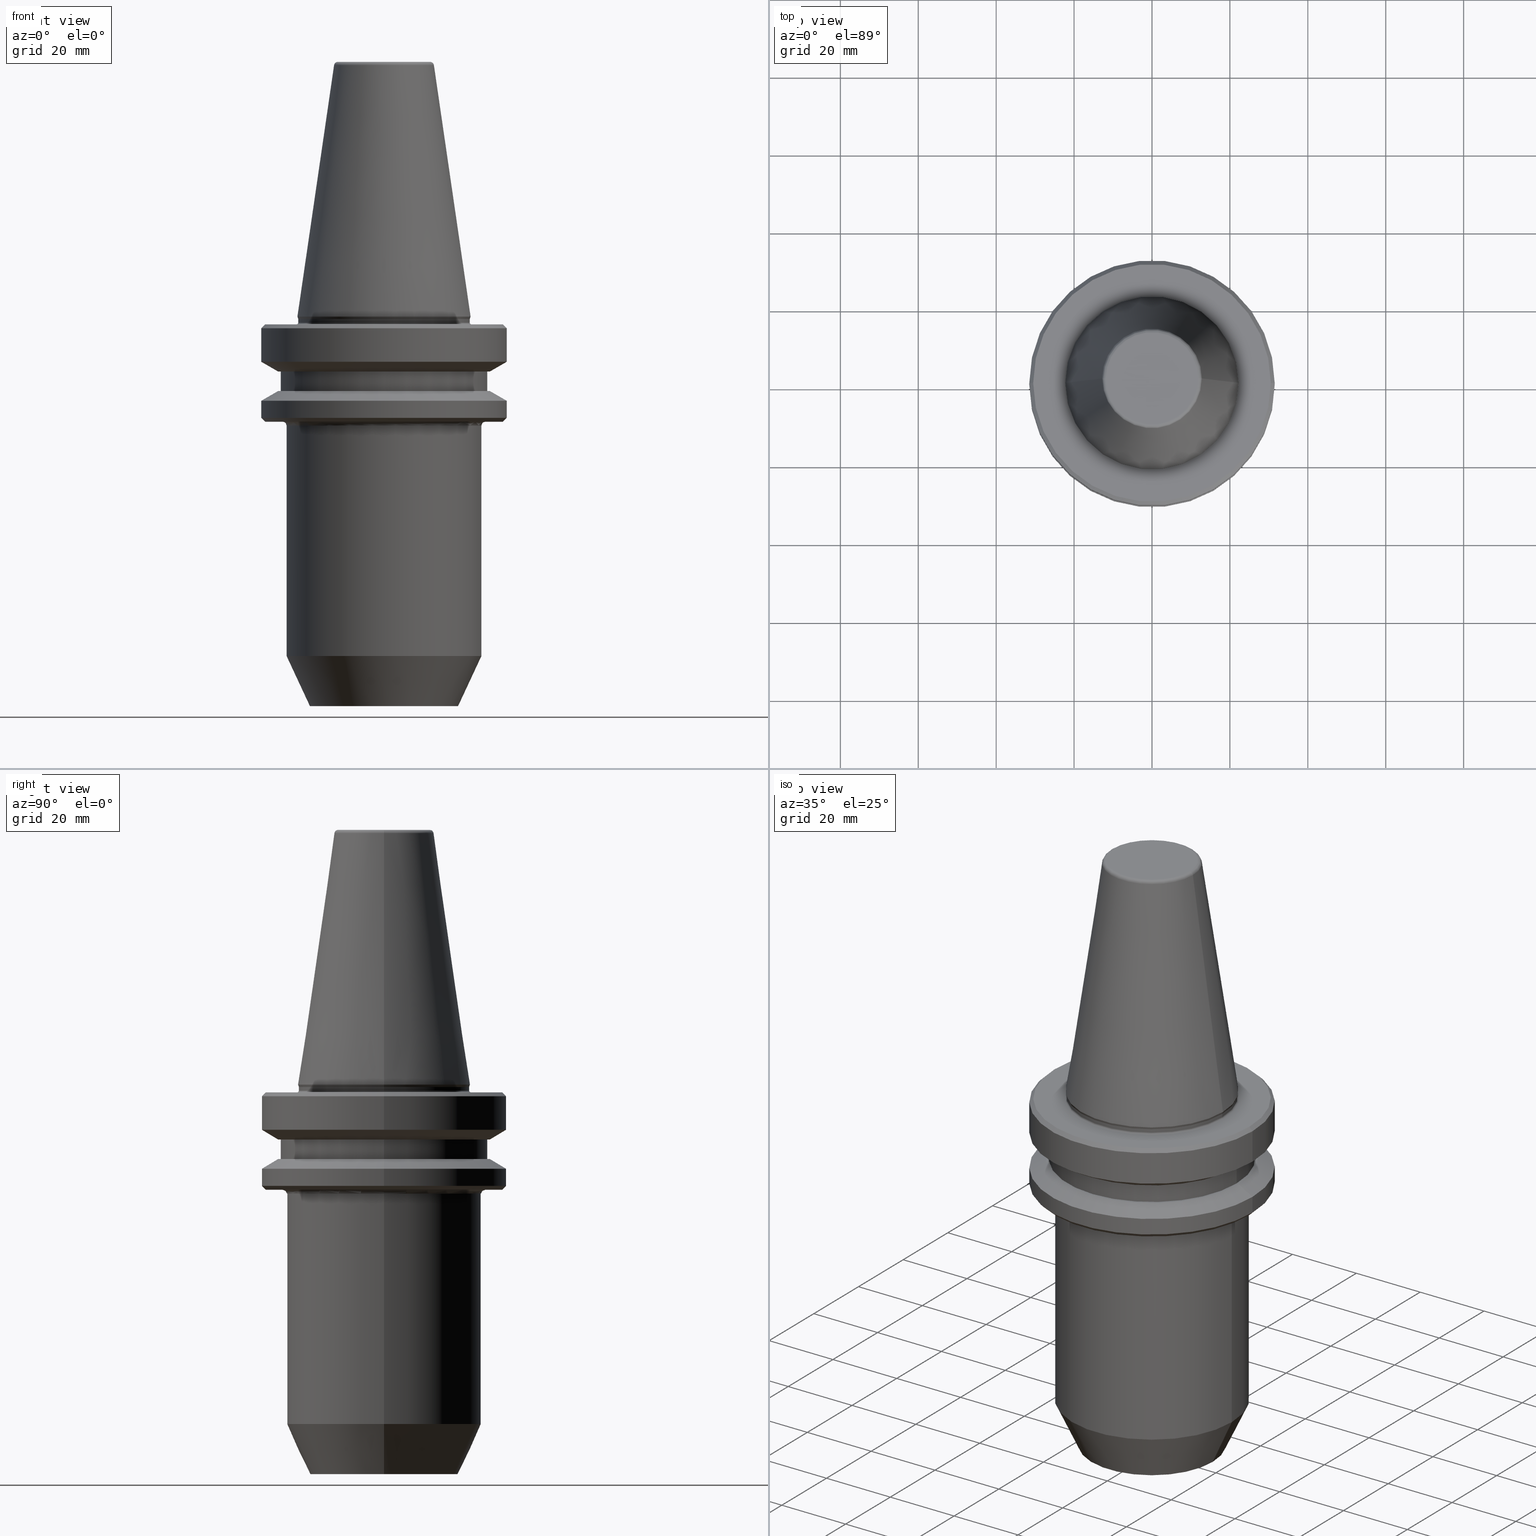
[diagram: canonical four-view strip — front | top / right | iso, engineering-drawing reading convention]
A machine part, canonical four-view strip (front | top / right | iso — engineering-drawing reading convention). The complete STEP part file that produces these views, byte-faithful:
ISO-10303-21;
HEADER;
FILE_DESCRIPTION (( 'STEP AP203' ),
    '1' );
FILE_NAME ('BT40 WE18 100 AD-6.3G15000 SL.STEP',
    '2019-05-22T08:54:59',
    ( '' ),
    ( '' ),
    'SwSTEP 2.0',
    'SolidWorks 2014',
    '' );
FILE_SCHEMA (( 'CONFIG_CONTROL_DESIGN' ));
ENDSEC;

DATA;
#1 =( GEOMETRIC_REPRESENTATION_CONTEXT ( 3 ) GLOBAL_UNCERTAINTY_ASSIGNED_CONTEXT ( ( #547 ) ) GLOBAL_UNIT_ASSIGNED_CONTEXT ( ( #986, #106, #690 ) ) REPRESENTATION_CONTEXT ( 'NONE', 'WORKASPACE' ) );
#2 = CARTESIAN_POINT ( 'NONE',  ( 0.0000000000000000000, 0.0000000000000000000, 65.08871321166032000 ) ) ;
#3 = EDGE_CURVE ( 'NONE', #1038, #487, #898, .T. ) ;
#4 = EDGE_CURVE ( 'NONE', #88, #40, #862, .T. ) ;
#5 = PLANE ( 'NONE',  #284 ) ;
#6 = APPLICATION_CONTEXT ( 'configuration controlled 3d designs of mechanical parts and assemblies' ) ;
#7 = AXIS2_PLACEMENT_3D ( 'NONE', #580, #63, #651 ) ;
#8 = ORIENTED_EDGE ( 'NONE', *, *, #808, .T. ) ;
#9 = EDGE_CURVE ( 'NONE', #241, #40, #962, .T. ) ;
#10 = ORIENTED_EDGE ( 'NONE', *, *, #779, .F. ) ;
#11 = COORDINATED_UNIVERSAL_TIME_OFFSET ( 5, 30, .AHEAD. ) ;
#12 = AXIS2_PLACEMENT_3D ( 'NONE', #757, #100, #289 ) ;
#13 = APPROVAL_STATUS ( 'not_yet_approved' ) ;
#14 = CIRCLE ( 'NONE', #124, 0.5000000000000282000 ) ;
#15 = AXIS2_PLACEMENT_3D ( 'NONE', #369, #753, #270 ) ;
#16 = CIRCLE ( 'NONE', #53, 25.00000000000000000 ) ;
#17 = CARTESIAN_POINT ( 'NONE',  ( 22.22499999999971700, 0.0000000000000000000, 0.6887132116596417200 ) ) ;
#18 = AXIS2_PLACEMENT_3D ( 'NONE', #828, #275, #360 ) ;
#19 = DIRECTION ( 'NONE',  ( -0.0000000000000000000, -0.0000000000000000000, 1.000000000000000000 ) ) ;
#20 = ORIENTED_EDGE ( 'NONE', *, *, #875, .F. ) ;
#21 = ORIENTED_EDGE ( 'NONE', *, *, #768, .T. ) ;
#22 = DIRECTION ( 'NONE',  ( -0.0000000000000000000, -0.0000000000000000000, 1.000000000000000000 ) ) ;
#23 = VERTEX_POINT ( 'NONE', #431 ) ;
#24 = CIRCLE ( 'NONE', #296, 1.000000000000000900 ) ;
#25 = ORIENTED_EDGE ( 'NONE', *, *, #204, .T. ) ;
#26 = FACE_OUTER_BOUND ( 'NONE', #859, .T. ) ;
#27 = AXIS2_PLACEMENT_3D ( 'NONE', #524, #193, #976 ) ;
#28 = CIRCLE ( 'NONE', #357, 27.16962701892167300 ) ;
#29 = CARTESIAN_POINT ( 'NONE',  ( -22.39999999999986400, 2.743208830090054500E-015, -5.551115123125782700E-014 ) ) ;
#30 = CARTESIAN_POINT ( 'NONE',  ( -19.00000000000000000, 2.326828918379971000E-015, -99.31128678834039600 ) ) ;
#31 = LINE ( 'NONE', #739, #249 ) ;
#32 = AXIS2_PLACEMENT_3D ( 'NONE', #179, #593, #741 ) ;
#33 = FACE_OUTER_BOUND ( 'NONE', #218, .T. ) ;
#34 = AXIS2_PLACEMENT_3D ( 'NONE', #95, #195, #756 ) ;
#35 = DIRECTION ( 'NONE',  ( -0.0000000000000000000, -0.0000000000000000000, 1.000000000000000000 ) ) ;
#36 = DIRECTION ( 'NONE',  ( -0.0000000000000000000, -0.0000000000000000000, 1.000000000000000000 ) ) ;
#37 = AXIS2_PLACEMENT_3D ( 'NONE', #1043, #600, #86 ) ;
#38 = EDGE_LOOP ( 'NONE', ( #983, #129, #871, #724 ) ) ;
#39 = APPROVAL ( #111, 'UNSPECIFIED' ) ;
#40 = VERTEX_POINT ( 'NONE', #539 ) ;
#41 = AXIS2_PLACEMENT_3D ( 'NONE', #365, #906, #447 ) ;
#42 = CIRCLE ( 'NONE', #355, 31.50000000000019500 ) ;
#43 = EDGE_LOOP ( 'NONE', ( #320, #416, #319, #760 ) ) ;
#44 = DIRECTION ( 'NONE',  ( 1.000000000000000000, 0.0000000000000000000, 0.0000000000000000000 ) ) ;
#45 = CARTESIAN_POINT ( 'NONE',  ( 30.49999999999997200, 0.0000000000000000000, -26.31128678844368800 ) ) ;
#46 = VERTEX_POINT ( 'NONE', #1030 ) ;
#47 = CARTESIAN_POINT ( 'NONE',  ( 0.0000000000000000000, 0.0000000000000000000, -13.41128678834002700 ) ) ;
#48 = AXIS2_PLACEMENT_3D ( 'NONE', #672, #184, #746 ) ;
#49 = CARTESIAN_POINT ( 'NONE',  ( 25.00000000000000000, 0.0000000000000000000, 82.74845858742440900 ) ) ;
#50 = ADVANCED_FACE ( 'NONE', ( #246 ), #915, .F. ) ;
#51 = DIRECTION ( 'NONE',  ( -0.0000000000000000000, -0.0000000000000000000, 1.000000000000000000 ) ) ;
#52 = CARTESIAN_POINT ( 'NONE',  ( 0.0000000000000000000, 0.0000000000000000000, -13.41128678834002700 ) ) ;
#53 = AXIS2_PLACEMENT_3D ( 'NONE', #965, #517, #1040 ) ;
#54 = EDGE_LOOP ( 'NONE', ( #330, #181, #153, #833 ) ) ;
#55 = ORIENTED_EDGE ( 'NONE', *, *, #799, .F. ) ;
#56 = AXIS2_PLACEMENT_3D ( 'NONE', #264, #821, #358 ) ;
#57 = LINE ( 'NONE', #567, #121 ) ;
#58 = VERTEX_POINT ( 'NONE', #1032 ) ;
#59 = ADVANCED_FACE ( 'NONE', ( #885 ), #861, .T. ) ;
#60 = AXIS2_PLACEMENT_3D ( 'NONE', #591, #81, #668 ) ;
#61 = VECTOR ( 'NONE', #492, 1000.000000000000000 ) ;
#62 = ORIENTED_EDGE ( 'NONE', *, *, #764, .F. ) ;
#63 = DIRECTION ( 'NONE',  ( -0.0000000000000000000, -0.0000000000000000000, 1.000000000000000000 ) ) ;
#64 = AXIS2_PLACEMENT_3D ( 'NONE', #256, #819, #354 ) ;
#65 = DIRECTION ( 'NONE',  ( 0.0000000000000000000, -1.000000000000000000, 0.0000000000000000000 ) ) ;
#66 = CARTESIAN_POINT ( 'NONE',  ( 31.49999999999986100, 0.0000000000000000000, 82.74845858742440900 ) ) ;
#67 = AXIS2_PLACEMENT_3D ( 'NONE', #811, #1033, #509 ) ;
#68 = CARTESIAN_POINT ( 'NONE',  ( 0.0000000000000000000, 0.0000000000000000000, -13.41128678834002700 ) ) ;
#69 = AXIS2_PLACEMENT_3D ( 'NONE', #504, #1028, #581 ) ;
#70 = AXIS2_PLACEMENT_3D ( 'NONE', #557, #35, #632 ) ;
#71 = VERTEX_POINT ( 'NONE', #367 ) ;
#72 = CARTESIAN_POINT ( 'NONE',  ( 21.99999999999981200, 0.0000000000000000000, 82.74845858742440900 ) ) ;
#73 = AXIS2_PLACEMENT_3D ( 'NONE', #863, #405, #936 ) ;
#74 = ORIENTED_EDGE ( 'NONE', *, *, #841, .T. ) ;
#75 = EDGE_LOOP ( 'NONE', ( #759, #558 ) ) ;
#76 = DIRECTION ( 'NONE',  ( -0.0000000000000000000, -0.0000000000000000000, 1.000000000000000000 ) ) ;
#77 = CIRCLE ( 'NONE', #85, 31.49999999999986100 ) ;
#78 = AXIS2_PLACEMENT_3D ( 'NONE', #243, #804, #341 ) ;
#79 = LINE ( 'NONE', #315, #432 ) ;
#80 = FACE_OUTER_BOUND ( 'NONE', #625, .T. ) ;
#81 = DIRECTION ( 'NONE',  ( -0.0000000000000000000, -0.0000000000000000000, 1.000000000000000000 ) ) ;
#82 = AXIS2_PLACEMENT_3D ( 'NONE', #29, #628, #128 ) ;
#83 = AXIS2_PLACEMENT_3D ( 'NONE', #399, #934, #477 ) ;
#84 = ADVANCED_FACE ( 'NONE', ( #851 ), #858, .F. ) ;
#85 = AXIS2_PLACEMENT_3D ( 'NONE', #235, #802, #334 ) ;
#86 = DIRECTION ( 'NONE',  ( 1.000000000000000000, 0.0000000000000000000, 0.0000000000000000000 ) ) ;
#87 = EDGE_LOOP ( 'NONE', ( #467, #485 ) ) ;
#88 = VERTEX_POINT ( 'NONE', #454 ) ;
#89 = CARTESIAN_POINT ( 'NONE',  ( 0.0000000000000000000, 0.0000000000000000000, -99.31128678834039600 ) ) ;
#90 = FACE_OUTER_BOUND ( 'NONE', #1014, .T. ) ;
#91 = CARTESIAN_POINT ( 'NONE',  ( -25.00000000000000000, 3.061616997868383000E-015, 82.74845858742440900 ) ) ;
#92 = ADVANCED_FACE ( 'NONE', ( #621 ), #716, .F. ) ;
#93 = EDGE_CURVE ( 'NONE', #805, #967, #1031, .T. ) ;
#94 = VECTOR ( 'NONE', #954, 1000.000000000000100 ) ;
#95 = CARTESIAN_POINT ( 'NONE',  ( 0.0000000000000000000, 0.0000000000000000000, 0.6887132116596417200 ) ) ;
#96 = AXIS2_PLACEMENT_3D ( 'NONE', #424, #951, #497 ) ;
#97 = FACE_OUTER_BOUND ( 'NONE', #257, .T. ) ;
#98 = DIRECTION ( 'NONE',  ( -0.0000000000000000000, -0.0000000000000000000, 1.000000000000000000 ) ) ;
#99 = ADVANCED_FACE ( 'NONE', ( #973 ), #842, .T. ) ;
#100 = DIRECTION ( 'NONE',  ( -0.0000000000000000000, -0.0000000000000000000, 1.000000000000000000 ) ) ;
#101 = EDGE_CURVE ( 'NONE', #1048, #131, #877, .T. ) ;
#102 = AXIS2_PLACEMENT_3D ( 'NONE', #570, #51, #645 ) ;
#103 = EDGE_LOOP ( 'NONE', ( #308, #430, #847, #392 ) ) ;
#104 = EDGE_LOOP ( 'NONE', ( #595, #713, #25, #219 ) ) ;
#105 = EDGE_CURVE ( 'NONE', #164, #855, #730, .T. ) ;
#106 =( NAMED_UNIT ( * ) PLANE_ANGLE_UNIT ( ) SI_UNIT ( $, .RADIAN. ) );
#107 = ORIENTED_EDGE ( 'NONE', *, *, #533, .F. ) ;
#108 = DIRECTION ( 'NONE',  ( 1.000000000000000000, 0.0000000000000000000, 0.0000000000000000000 ) ) ;
#109 = FACE_OUTER_BOUND ( 'NONE', #38, .T. ) ;
#110 = AXIS2_PLACEMENT_3D ( 'NONE', #325, #1017, #641 ) ;
#111 = APPROVAL_STATUS ( 'not_yet_approved' ) ;
#112 = EDGE_CURVE ( 'NONE', #781, #58, #549, .T. ) ;
#113 = DIRECTION ( 'NONE',  ( 0.0000000000000000000, 0.0000000000000000000, -1.000000000000000000 ) ) ;
#114 = AXIS2_PLACEMENT_3D ( 'NONE', #720, #798, #154 ) ;
#115 = EDGE_CURVE ( 'NONE', #700, #1038, #729, .T. ) ;
#116 = EDGE_LOOP ( 'NONE', ( #464, #216 ) ) ;
#117 = DIRECTION ( 'NONE',  ( -0.0000000000000000000, -0.0000000000000000000, 1.000000000000000000 ) ) ;
#118 = AXIS2_PLACEMENT_3D ( 'NONE', #486, #146, #321 ) ;
#119 = ORIENTED_EDGE ( 'NONE', *, *, #882, .T. ) ;
#120 = AXIS2_PLACEMENT_3D ( 'NONE', #47, #873, #636 ) ;
#121 = VECTOR ( 'NONE', #324, 1000.000000000000000 ) ;
#122 = CYLINDRICAL_SURFACE ( 'NONE', #110, 25.00000000000000000 ) ;
#123 = EDGE_CURVE ( 'NONE', #241, #958, #515, .T. ) ;
#124 = AXIS2_PLACEMENT_3D ( 'NONE', #878, #421, #946 ) ;
#125 = DIRECTION ( 'NONE',  ( 0.0000000000000000000, -1.000000000000000000, 0.0000000000000000000 ) ) ;
#126 = DIRECTION ( 'NONE',  ( -0.0000000000000000000, -0.0000000000000000000, 1.000000000000000000 ) ) ;
#127 = EDGE_CURVE ( 'NONE', #855, #427, #785, .T. ) ;
#128 = DIRECTION ( 'NONE',  ( -1.000000000000000000, 1.224646799147359900E-016, 0.0000000000000000000 ) ) ;
#129 = ORIENTED_EDGE ( 'NONE', *, *, #634, .T. ) ;
#130 = AXIS2_PLACEMENT_3D ( 'NONE', #350, #892, #437 ) ;
#131 = VERTEX_POINT ( 'NONE', #573 ) ;
#132 = CARTESIAN_POINT ( 'NONE',  ( 0.0000000000000000000, 30.49999999999986100, -1.311286788340082500 ) ) ;
#133 = ORIENTED_EDGE ( 'NONE', *, *, #498, .F. ) ;
#134 = EDGE_CURVE ( 'NONE', #23, #487, #825, .T. ) ;
#135 = FACE_BOUND ( 'NONE', #196, .T. ) ;
#136 = DIRECTION ( 'NONE',  ( 1.000000000000000000, 0.0000000000000000000, 0.0000000000000000000 ) ) ;
#137 = ADVANCED_FACE ( 'NONE', ( #987 ), #953, .T. ) ;
#138 = AXIS2_PLACEMENT_3D ( 'NONE', #1009, #566, #44 ) ;
#139 = ADVANCED_FACE ( 'NONE', ( #336 ), #562, .T. ) ;
#140 = CIRCLE ( 'NONE', #323, 30.49999999999997200 ) ;
#141 = CARTESIAN_POINT ( 'NONE',  ( -31.50000000000019500, 3.857637417314186400E-015, -25.31128678844346400 ) ) ;
#142 = CARTESIAN_POINT ( 'NONE',  ( -31.50000000000019500, 3.857637417314186400E-015, 82.74845858742440900 ) ) ;
#143 = EDGE_CURVE ( 'NONE', #543, #650, #382, .T. ) ;
#144 = EDGE_CURVE ( 'NONE', #71, #186, #158, .T. ) ;
#145 = TOROIDAL_SURFACE ( 'NONE', #15, 22.39999999999986400, 0.4000000000001126500 ) ;
#146 = DIRECTION ( 'NONE',  ( -0.0000000000000000000, -0.0000000000000000000, 1.000000000000000000 ) ) ;
#147 = DIRECTION ( 'NONE',  ( -0.0000000000000000000, -0.0000000000000000000, 1.000000000000000000 ) ) ;
#148 = AXIS2_PLACEMENT_3D ( 'NONE', #717, #229, #791 ) ;
#149 = ORIENTED_EDGE ( 'NONE', *, *, #770, .F. ) ;
#150 = AXIS2_PLACEMENT_3D ( 'NONE', #132, #227, #789 ) ;
#151 = ORIENTED_EDGE ( 'NONE', *, *, #620, .F. ) ;
#152 = LINE ( 'NONE', #393, #419 ) ;
#153 = ORIENTED_EDGE ( 'NONE', *, *, #510, .F. ) ;
#154 = DIRECTION ( 'NONE',  ( -1.000000000000000000, 0.0000000000000000000, 0.0000000000000000000 ) ) ;
#155 = EDGE_CURVE ( 'NONE', #960, #958, #797, .T. ) ;
#156 = CYLINDRICAL_SURFACE ( 'NONE', #118, 31.49999999999986100 ) ;
#157 = DIRECTION ( 'NONE',  ( -0.1443081888881784800, 0.0000000000000000000, -0.9895327920891828800 ) ) ;
#158 = CIRCLE ( 'NONE', #398, 30.49999999999986100 ) ;
#159 = EDGE_CURVE ( 'NONE', #532, #640, #670, .T. ) ;
#160 = VECTOR ( 'NONE', #677, 1000.000000000000000 ) ;
#161 = AXIS2_PLACEMENT_3D ( 'NONE', #589, #76, #662 ) ;
#162 = AXIS2_PLACEMENT_3D ( 'NONE', #165, #734, #248 ) ;
#163 = EDGE_CURVE ( 'NONE', #700, #23, #812, .T. ) ;
#164 = VERTEX_POINT ( 'NONE', #1016 ) ;
#165 = CARTESIAN_POINT ( 'NONE',  ( 0.0000000000000000000, 0.0000000000000000000, -10.91114478202370800 ) ) ;
#166 = ORIENTED_EDGE ( 'NONE', *, *, #808, .F. ) ;
#167 = EDGE_CURVE ( 'NONE', #58, #781, #28, .T. ) ;
#168 = ORIENTED_EDGE ( 'NONE', *, *, #112, .F. ) ;
#169 = ORIENTED_EDGE ( 'NONE', *, *, #144, .T. ) ;
#170 = FACE_OUTER_BOUND ( 'NONE', #907, .T. ) ;
#171 = AXIS2_PLACEMENT_3D ( 'NONE', #867, #709, #565 ) ;
#172 = VECTOR ( 'NONE', #635, 1000.000000000000000 ) ;
#173 = EDGE_LOOP ( 'NONE', ( #317, #630, #938, #736 ) ) ;
#174 = CARTESIAN_POINT ( 'NONE',  ( 0.0000000000000000000, 0.0000000000000000000, 0.1368080573304758500 ) ) ;
#175 = EDGE_CURVE ( 'NONE', #208, #650, #57, .T. ) ;
#176 = EDGE_CURVE ( 'NONE', #586, #650, #79, .T. ) ;
#177 = ADVANCED_FACE ( 'NONE', ( #644 ), #656, .F. ) ;
#178 = AXIS2_PLACEMENT_3D ( 'NONE', #940, #483, #1007 ) ;
#179 = CARTESIAN_POINT ( 'NONE',  ( 0.0000000000000000000, 0.0000000000000000000, 82.74845858742440900 ) ) ;
#180 = CARTESIAN_POINT ( 'NONE',  ( 0.0000000000000000000, 0.0000000000000000000, 0.6887132116596417200 ) ) ;
#181 = ORIENTED_EDGE ( 'NONE', *, *, #779, .T. ) ;
#182 = ORIENTED_EDGE ( 'NONE', *, *, #841, .F. ) ;
#183 = AXIS2_PLACEMENT_3D ( 'NONE', #224, #784, #318 ) ;
#184 = DIRECTION ( 'NONE',  ( 1.224646799147353200E-016, 1.000000000000000000, 0.0000000000000000000 ) ) ;
#185 = FACE_OUTER_BOUND ( 'NONE', #116, .T. ) ;
#186 = VERTEX_POINT ( 'NONE', #790 ) ;
#187 = VECTOR ( 'NONE', #401, 1000.000000000000000 ) ;
#188 = EDGE_CURVE ( 'NONE', #997, #809, #912, .T. ) ;
#189 = ORIENTED_EDGE ( 'NONE', *, *, #175, .T. ) ;
#190 = EDGE_CURVE ( 'NONE', #997, #792, #140, .T. ) ;
#191 = DIRECTION ( 'NONE',  ( -0.0000000000000000000, -0.0000000000000000000, 1.000000000000000000 ) ) ;
#192 = PERSON_AND_ORGANIZATION ( #926, #247 ) ;
#193 = DIRECTION ( 'NONE',  ( 0.0000000000000000000, 0.0000000000000000000, -1.000000000000000000 ) ) ;
#194 = AXIS2_PLACEMENT_3D ( 'NONE', #174, #990, #434 ) ;
#195 = DIRECTION ( 'NONE',  ( 0.0000000000000000000, 0.0000000000000000000, -1.000000000000000000 ) ) ;
#196 = EDGE_LOOP ( 'NONE', ( #931, #502 ) ) ;
#197 = ORIENTED_EDGE ( 'NONE', *, *, #835, .T. ) ;
#198 = DIRECTION ( 'NONE',  ( 1.000000000000000000, 0.0000000000000000000, 0.0000000000000000000 ) ) ;
#199 = AXIS2_PLACEMENT_3D ( 'NONE', #775, #387, #205 ) ;
#200 = CARTESIAN_POINT ( 'NONE',  ( 0.0000000000000000000, 0.0000000000000000000, -27.31128678844368800 ) ) ;
#201 = DIRECTION ( 'NONE',  ( 0.0000000000000000000, 0.0000000000000000000, -1.000000000000000000 ) ) ;
#202 = FACE_OUTER_BOUND ( 'NONE', #475, .T. ) ;
#203 = AXIS2_PLACEMENT_3D ( 'NONE', #890, #511, #689 ) ;
#204 = EDGE_CURVE ( 'NONE', #809, #950, #610, .T. ) ;
#205 = DIRECTION ( 'NONE',  ( 1.000000000000000000, 0.0000000000000000000, 0.0000000000000000000 ) ) ;
#206 = FACE_OUTER_BOUND ( 'NONE', #228, .T. ) ;
#207 = PERSON_AND_ORGANIZATION_ROLE ( 'creator' ) ;
#208 = VERTEX_POINT ( 'NONE', #787 ) ;
#209 = EDGE_CURVE ( 'NONE', #682, #307, #840, .T. ) ;
#210 = ORIENTED_EDGE ( 'NONE', *, *, #692, .F. ) ;
#211 = DIRECTION ( 'NONE',  ( -1.000000000000000000, 0.0000000000000000000, 0.0000000000000000000 ) ) ;
#212 = EDGE_LOOP ( 'NONE', ( #738, #499 ) ) ;
#213 = CONICAL_SURFACE ( 'NONE', #120, 27.16962701892278200, 1.047197551196600300 ) ;
#214 = CONICAL_SURFACE ( 'NONE', #114, 31.49999999999986100, 0.7853981633974482800 ) ;
#215 = AXIS2_PLACEMENT_3D ( 'NONE', #618, #353, #471 ) ;
#216 = ORIENTED_EDGE ( 'NONE', *, *, #691, .F. ) ;
#217 = AXIS2_PLACEMENT_3D ( 'NONE', #305, #680, #590 ) ;
#218 = EDGE_LOOP ( 'NONE', ( #238, #513, #831, #678 ) ) ;
#219 = ORIENTED_EDGE ( 'NONE', *, *, #525, .F. ) ;
#220 = EDGE_CURVE ( 'NONE', #809, #682, #42, .T. ) ;
#221 = DIRECTION ( 'NONE',  ( 1.000000000000000000, 0.0000000000000000000, 0.0000000000000000000 ) ) ;
#222 = EDGE_CURVE ( 'NONE', #58, #950, #516, .T. ) ;
#223 = CYLINDRICAL_SURFACE ( 'NONE', #67, 31.50000000000019500 ) ;
#224 = CARTESIAN_POINT ( 'NONE',  ( 0.0000000000000000000, 0.0000000000000000000, -25.31128678844346400 ) ) ;
#225 = DIRECTION ( 'NONE',  ( 1.000000000000000000, 0.0000000000000000000, 0.0000000000000000000 ) ) ;
#226 = AXIS2_PLACEMENT_3D ( 'NONE', #605, #98, #750 ) ;
#227 = DIRECTION ( 'NONE',  ( 0.0000000000000000000, 0.0000000000000000000, -1.000000000000000000 ) ) ;
#228 = EDGE_LOOP ( 'NONE', ( #721, #783, #607, #771 ) ) ;
#229 = DIRECTION ( 'NONE',  ( -0.0000000000000000000, -0.0000000000000000000, 1.000000000000000000 ) ) ;
#230 = ORIENTED_EDGE ( 'NONE', *, *, #155, .T. ) ;
#231 = AXIS2_PLACEMENT_3D ( 'NONE', #623, #117, #699 ) ;
#232 = CIRCLE ( 'NONE', #102, 22.02412295168547700 ) ;
#233 = AXIS2_PLACEMENT_3D ( 'NONE', #514, #843, #979 ) ;
#234 = CARTESIAN_POINT ( 'NONE',  ( 0.0000000000000000000, 0.0000000000000000000, -13.41128678834002700 ) ) ;
#235 = CARTESIAN_POINT ( 'NONE',  ( 0.0000000000000000000, 0.0000000000000000000, -10.91114478202370800 ) ) ;
#236 = ORIENTED_EDGE ( 'NONE', *, *, #9, .F. ) ;
#237 = DIRECTION ( 'NONE',  ( -0.0000000000000000000, -0.0000000000000000000, 1.000000000000000000 ) ) ;
#238 = ORIENTED_EDGE ( 'NONE', *, *, #115, .T. ) ;
#239 = EDGE_CURVE ( 'NONE', #164, #569, #266, .T. ) ;
#240 = FACE_OUTER_BOUND ( 'NONE', #75, .T. ) ;
#241 = VERTEX_POINT ( 'NONE', #1020 ) ;
#242 = ADVANCED_FACE ( 'NONE', ( #240, #135 ), #579, .F. ) ;
#243 = CARTESIAN_POINT ( 'NONE',  ( -11.82266927716790800, 1.447859408766143000E-015, 65.08871321166032000 ) ) ;
#244 = CIRCLE ( 'NONE', #73, 26.50000000000007800 ) ;
#245 = PLANE ( 'NONE',  #203 ) ;
#246 = FACE_OUTER_BOUND ( 'NONE', #87, .T. ) ;
#247 = ORGANIZATION ( 'UNSPECIFIED', 'UNSPECIFIED', '' ) ;
#248 = DIRECTION ( 'NONE',  ( 1.000000000000000000, 0.0000000000000000000, 0.0000000000000000000 ) ) ;
#249 = VECTOR ( 'NONE', #963, 1000.000000000000000 ) ;
#250 = CARTESIAN_POINT ( 'NONE',  ( 0.0000000000000000000, 11.82266927716801800, 66.08871321166014900 ) ) ;
#251 = LINE ( 'NONE', #834, #1047 ) ;
#252 = CARTESIAN_POINT ( 'NONE',  ( 31.50000000000019500, 0.0000000000000000000, -25.31128678844346400 ) ) ;
#253 = DIRECTION ( 'NONE',  ( -0.7071067811865474600, 8.659560562354931600E-017, 0.7071067811865475700 ) ) ;
#254 = AXIS2_PLACEMENT_3D ( 'NONE', #977, #191, #675 ) ;
#255 = ADVANCED_FACE ( 'NONE', ( #395 ), #597, .T. ) ;
#256 = CARTESIAN_POINT ( 'NONE',  ( 0.0000000000000000000, 0.0000000000000000000, -27.31128678844368800 ) ) ;
#257 = EDGE_LOOP ( 'NONE', ( #1029, #295, #836, #758 ) ) ;
#258 = AXIS2_PLACEMENT_3D ( 'NONE', #276, #829, #818 ) ;
#259 = FACE_OUTER_BOUND ( 'NONE', #939, .T. ) ;
#260 = ORIENTED_EDGE ( 'NONE', *, *, #799, .T. ) ;
#261 = CARTESIAN_POINT ( 'NONE',  ( -12.81220206925713600, 1.569042225414484800E-015, 65.23302140054848100 ) ) ;
#262 = LOCAL_TIME ( 14, 24, 59.00000000000000000, #11 ) ;
#263 = CIRCLE ( 'NONE', #70, 27.16962701892278200 ) ;
#264 = CARTESIAN_POINT ( 'NONE',  ( 0.0000000000000000000, 0.0000000000000000000, 0.1368080573304758500 ) ) ;
#265 = AXIS2_PLACEMENT_3D ( 'NONE', #267, #381, #290 ) ;
#266 = CIRCLE ( 'NONE', #352, 27.16962701892278200 ) ;
#267 = CARTESIAN_POINT ( 'NONE',  ( 0.0000000000000000000, 0.0000000000000000000, 82.74845858742440900 ) ) ;
#268 = ADVANCED_FACE ( 'NONE', ( #202 ), #297, .T. ) ;
#269 = APPROVAL_DATE_TIME ( #385, #740 ) ;
#270 = DIRECTION ( 'NONE',  ( 1.000000000000000000, 0.0000000000000000000, 0.0000000000000000000 ) ) ;
#271 = AXIS2_PLACEMENT_3D ( 'NONE', #372, #830, #529 ) ;
#272 = DIRECTION ( 'NONE',  ( 0.0000000000000000000, 0.0000000000000000000, -1.000000000000000000 ) ) ;
#273 = CC_DESIGN_APPROVAL ( #39, ( #496 ) ) ;
#274 = AXIS2_PLACEMENT_3D ( 'NONE', #664, #592, #342 ) ;
#275 = DIRECTION ( 'NONE',  ( -0.0000000000000000000, -0.0000000000000000000, 1.000000000000000000 ) ) ;
#276 = CARTESIAN_POINT ( 'NONE',  ( 0.0000000000000000000, 0.0000000000000000000, -26.31128678844368800 ) ) ;
#277 = ORIENTED_EDGE ( 'NONE', *, *, #222, .T. ) ;
#278 = ORIENTED_EDGE ( 'NONE', *, *, #820, .F. ) ;
#279 = AXIS2_PLACEMENT_3D ( 'NONE', #180, #283, #754 ) ;
#280 = CARTESIAN_POINT ( 'NONE',  ( -22.49999999999985400, 2.755455298081526600E-015, -1.311286788340096300 ) ) ;
#281 = ORIENTED_EDGE ( 'NONE', *, *, #893, .F. ) ;
#282 = AXIS2_PLACEMENT_3D ( 'NONE', #732, #669, #845 ) ;
#283 = DIRECTION ( 'NONE',  ( -0.0000000000000000000, -0.0000000000000000000, 1.000000000000000000 ) ) ;
#284 = AXIS2_PLACEMENT_3D ( 'NONE', #250, #201, #988 ) ;
#285 = DIRECTION ( 'NONE',  ( -0.0000000000000000000, -0.0000000000000000000, 1.000000000000000000 ) ) ;
#286 = AXIS2_PLACEMENT_3D ( 'NONE', #89, #601, #108 ) ;
#287 = DIRECTION ( 'NONE',  ( -0.0000000000000000000, -0.0000000000000000000, 1.000000000000000000 ) ) ;
#288 = CIRCLE ( 'NONE', #48, 1.000000000000000900 ) ;
#289 = DIRECTION ( 'NONE',  ( 1.000000000000000000, 0.0000000000000000000, 0.0000000000000000000 ) ) ;
#290 = DIRECTION ( 'NONE',  ( 1.000000000000000000, 0.0000000000000000000, 0.0000000000000000000 ) ) ;
#291 = ADVANCED_FACE ( 'NONE', ( #762 ), #631, .T. ) ;
#292 = AXIS2_PLACEMENT_3D ( 'NONE', #777, #933, #583 ) ;
#293 = ORIENTED_EDGE ( 'NONE', *, *, #93, .T. ) ;
#294 = CARTESIAN_POINT ( 'NONE',  ( -25.00000000000000000, 3.061616997868383000E-015, -27.31128678844368800 ) ) ;
#295 = ORIENTED_EDGE ( 'NONE', *, *, #770, .T. ) ;
#296 = AXIS2_PLACEMENT_3D ( 'NONE', #624, #505, #1036 ) ;
#297 = CONICAL_SURFACE ( 'NONE', #327, 19.00000000000000000, 0.4363323129985761700 ) ;
#298 = EDGE_LOOP ( 'NONE', ( #151, #476, #394, #639 ) ) ;
#299 = APPROVAL_STATUS ( 'not_yet_approved' ) ;
#300 = CIRCLE ( 'NONE', #138, 30.49999999999997200 ) ;
#301 = AXIS2_PLACEMENT_3D ( 'NONE', #964, #615, #655 ) ;
#302 = CIRCLE ( 'NONE', #78, 1.000000000000028600 ) ;
#303 = CARTESIAN_POINT ( 'NONE',  ( 22.49999999999985400, 0.0000000000000000000, -0.8112867883400820500 ) ) ;
#304 = LOCAL_TIME ( 14, 24, 59.00000000000000000, #445 ) ;
#305 = CARTESIAN_POINT ( 'NONE',  ( 0.0000000000000000000, 0.0000000000000000000, 82.74845858742440900 ) ) ;
#306 = AXIS2_PLACEMENT_3D ( 'NONE', #551, #22, #705 ) ;
#307 = VERTEX_POINT ( 'NONE', #955 ) ;
#308 = ORIENTED_EDGE ( 'NONE', *, *, #506, .F. ) ;
#309 = CARTESIAN_POINT ( 'NONE',  ( -22.22499999999971700, 2.721777511104957700E-015, 0.6887132116596417200 ) ) ;
#310 = ORIENTED_EDGE ( 'NONE', *, *, #564, .T. ) ;
#311 = ADVANCED_FACE ( 'NONE', ( #333 ), #773, .T. ) ;
#312 = AXIS2_PLACEMENT_3D ( 'NONE', #438, #922, #463 ) ;
#313 = COORDINATED_UNIVERSAL_TIME_OFFSET ( 5, 30, .AHEAD. ) ;
#314 = EDGE_CURVE ( 'NONE', #950, #307, #874, .T. ) ;
#315 = CARTESIAN_POINT ( 'NONE',  ( -22.22499999999971700, 0.0000000000000000000, 0.6887132116596417200 ) ) ;
#316 = AXIS2_PLACEMENT_3D ( 'NONE', #484, #945, #1010 ) ;
#317 = ORIENTED_EDGE ( 'NONE', *, *, #144, .F. ) ;
#318 = DIRECTION ( 'NONE',  ( 1.000000000000000000, 0.0000000000000000000, 0.0000000000000000000 ) ) ;
#319 = ORIENTED_EDGE ( 'NONE', *, *, #314, .F. ) ;
#320 = ORIENTED_EDGE ( 'NONE', *, *, #220, .T. ) ;
#321 = DIRECTION ( 'NONE',  ( 1.000000000000000000, 0.0000000000000000000, 0.0000000000000000000 ) ) ;
#322 = FACE_BOUND ( 'NONE', #969, .T. ) ;
#323 = AXIS2_PLACEMENT_3D ( 'NONE', #412, #710, #225 ) ;
#324 = DIRECTION ( 'NONE',  ( -0.3420201433261634300, 4.188538737683050000E-017, 0.9396926207857283500 ) ) ;
#325 = CARTESIAN_POINT ( 'NONE',  ( 0.0000000000000000000, 0.0000000000000000000, 82.74845858742440900 ) ) ;
#326 = DIRECTION ( 'NONE',  ( -1.000000000000000000, 0.0000000000000000000, 0.0000000000000000000 ) ) ;
#327 = AXIS2_PLACEMENT_3D ( 'NONE', #1018, #998, #795 ) ;
#328 = EDGE_LOOP ( 'NONE', ( #823, #594, #883, #197 ) ) ;
#329 = ADVANCED_FACE ( 'NONE', ( #322, #577 ), #929, .F. ) ;
#330 = ORIENTED_EDGE ( 'NONE', *, *, #815, .T. ) ;
#331 = EDGE_CURVE ( 'NONE', #943, #640, #681, .T. ) ;
#332 = CIRCLE ( 'NONE', #279, 22.22499999999971700 ) ;
#333 = FACE_OUTER_BOUND ( 'NONE', #380, .T. ) ;
#334 = DIRECTION ( 'NONE',  ( 1.000000000000000000, 0.0000000000000000000, 0.0000000000000000000 ) ) ;
#335 = AXIS2_PLACEMENT_3D ( 'NONE', #723, #503, #1024 ) ;
#336 = FACE_OUTER_BOUND ( 'NONE', #810, .T. ) ;
#337 = CARTESIAN_POINT ( 'NONE',  ( 11.82266927716790800, 0.0000000000000000000, 65.08871321166032000 ) ) ;
#338 = AXIS2_PLACEMENT_3D ( 'NONE', #200, #980, #460 ) ;
#339 = VECTOR ( 'NONE', #957, 1000.000000000000000 ) ;
#340 = AXIS2_PLACEMENT_3D ( 'NONE', #914, #285, #375 ) ;
#341 = DIRECTION ( 'NONE',  ( -1.000000000000000000, 1.224646799147353900E-016, 0.0000000000000000000 ) ) ;
#342 = DIRECTION ( 'NONE',  ( 1.000000000000000000, 0.0000000000000000000, 0.0000000000000000000 ) ) ;
#343 = CC_DESIGN_PERSON_AND_ORGANIZATION_ASSIGNMENT ( #864, #537, ( #944 ) ) ;
#344 = DIRECTION ( 'NONE',  ( -0.0000000000000000000, -0.0000000000000000000, 1.000000000000000000 ) ) ;
#345 = ORIENTED_EDGE ( 'NONE', *, *, #882, .F. ) ;
#346 = AXIS2_PLACEMENT_3D ( 'NONE', #68, #19, #857 ) ;
#347 = DIRECTION ( 'NONE',  ( -1.000000000000000000, 0.0000000000000000000, 0.0000000000000000000 ) ) ;
#348 = ORIENTED_EDGE ( 'NONE', *, *, #465, .T. ) ;
#349 = ORIENTED_EDGE ( 'NONE', *, *, #776, .T. ) ;
#350 = CARTESIAN_POINT ( 'NONE',  ( 0.0000000000000000000, 0.0000000000000000000, -0.8112867883400820500 ) ) ;
#351 = CIRCLE ( 'NONE', #199, 31.49999999999986100 ) ;
#352 = AXIS2_PLACEMENT_3D ( 'NONE', #234, #649, #719 ) ;
#353 = DIRECTION ( 'NONE',  ( -0.0000000000000000000, -0.0000000000000000000, 1.000000000000000000 ) ) ;
#354 = DIRECTION ( 'NONE',  ( 1.000000000000000000, 0.0000000000000000000, 0.0000000000000000000 ) ) ;
#355 = AXIS2_PLACEMENT_3D ( 'NONE', #425, #952, #500 ) ;
#356 = EDGE_CURVE ( 'NONE', #472, #131, #24, .T. ) ;
#357 = AXIS2_PLACEMENT_3D ( 'NONE', #638, #147, #718 ) ;
#358 = DIRECTION ( 'NONE',  ( 1.000000000000000000, 0.0000000000000000000, 0.0000000000000000000 ) ) ;
#359 = AXIS2_PLACEMENT_3D ( 'NONE', #337, #65, #493 ) ;
#360 = DIRECTION ( 'NONE',  ( 1.000000000000000000, 0.0000000000000000000, 0.0000000000000000000 ) ) ;
#361 = ORIENTED_EDGE ( 'NONE', *, *, #331, .T. ) ;
#362 = EDGE_LOOP ( 'NONE', ( #982, #894, #711, #133 ) ) ;
#363 = DIRECTION ( 'NONE',  ( 1.000000000000000000, 0.0000000000000000000, 0.0000000000000000000 ) ) ;
#364 = ORIENTED_EDGE ( 'NONE', *, *, #554, .F. ) ;
#365 = CARTESIAN_POINT ( 'NONE',  ( 0.0000000000000000000, 0.0000000000000000000, -1.311286788340082500 ) ) ;
#366 = CALENDAR_DATE ( 2019, 22, 5 ) ;
#367 = CARTESIAN_POINT ( 'NONE',  ( 30.49999999999986100, 3.796405077356777800E-015, -1.311286788340082500 ) ) ;
#368 = APPROVAL_DATE_TIME ( #527, #910 ) ;
#369 = CARTESIAN_POINT ( 'NONE',  ( 0.0000000000000000000, 0.0000000000000000000, -5.551115123125782700E-014 ) ) ;
#370 = FACE_OUTER_BOUND ( 'NONE', #104, .T. ) ;
#371 = CYLINDRICAL_SURFACE ( 'NONE', #18, 31.50000000000019500 ) ;
#372 = CARTESIAN_POINT ( 'NONE',  ( 0.0000000000000000000, 0.0000000000000000000, -5.551115123125782700E-014 ) ) ;
#373 = AXIS2_PLACEMENT_3D ( 'NONE', #559, #36, #633 ) ;
#374 = COORDINATED_UNIVERSAL_TIME_OFFSET ( 5, 30, .AHEAD. ) ;
#375 = DIRECTION ( 'NONE',  ( 1.000000000000000000, 0.0000000000000000000, 0.0000000000000000000 ) ) ;
#376 = DIRECTION ( 'NONE',  ( 1.000000000000000000, 0.0000000000000000000, 0.0000000000000000000 ) ) ;
#377 = EDGE_LOOP ( 'NONE', ( #701, #571 ) ) ;
#378 = ORIENTED_EDGE ( 'NONE', *, *, #660, .T. ) ;
#379 = AXIS2_PLACEMENT_3D ( 'NONE', #860, #661, #879 ) ;
#380 = EDGE_LOOP ( 'NONE', ( #149, #107, #918, #348 ) ) ;
#381 = DIRECTION ( 'NONE',  ( -0.0000000000000000000, -0.0000000000000000000, 1.000000000000000000 ) ) ;
#382 = CIRCLE ( 'NONE', #389, 22.22499999999971700 ) ;
#383 = FACE_OUTER_BOUND ( 'NONE', #749, .T. ) ;
#384 = FACE_BOUND ( 'NONE', #212, .T. ) ;
#385 = DATE_AND_TIME ( #407, #706 ) ;
#386 = DIRECTION ( 'NONE',  ( 0.0000000000000000000, 0.0000000000000000000, 1.000000000000000000 ) ) ;
#387 = DIRECTION ( 'NONE',  ( -0.0000000000000000000, -0.0000000000000000000, 1.000000000000000000 ) ) ;
#388 = PERSON_AND_ORGANIZATION_ROLE ( 'creator' ) ;
#389 = AXIS2_PLACEMENT_3D ( 'NONE', #727, #937, #221 ) ;
#390 = CARTESIAN_POINT ( 'NONE',  ( 27.16962701892278200, 0.0000000000000000000, -13.41128678834002700 ) ) ;
#391 = ADVANCED_FACE ( 'NONE', ( #259 ), #703, .T. ) ;
#392 = ORIENTED_EDGE ( 'NONE', *, *, #356, .F. ) ;
#393 = CARTESIAN_POINT ( 'NONE',  ( 27.16962701892278200, 0.0000000000000000000, -13.41128678834002700 ) ) ;
#394 = ORIENTED_EDGE ( 'NONE', *, *, #188, .T. ) ;
#395 = FACE_OUTER_BOUND ( 'NONE', #1001, .T. ) ;
#396 = CARTESIAN_POINT ( 'NONE',  ( 0.0000000000000000000, 0.0000000000000000000, 0.6887132116596417200 ) ) ;
#397 = APPROVAL_PERSON_ORGANIZATION ( #192, #740, #616 ) ;
#398 = AXIS2_PLACEMENT_3D ( 'NONE', #481, #1005, #136 ) ;
#399 = CARTESIAN_POINT ( 'NONE',  ( 0.0000000000000000000, 0.0000000000000000000, -99.31128678834039600 ) ) ;
#400 = AXIS2_PLACEMENT_3D ( 'NONE', #948, #698, #211 ) ;
#401 = DIRECTION ( 'NONE',  ( -0.0000000000000000000, -0.0000000000000000000, 1.000000000000000000 ) ) ;
#402 = ORIENTED_EDGE ( 'NONE', *, *, #1021, .F. ) ;
#403 = AXIS2_PLACEMENT_3D ( 'NONE', #52, #646, #417 ) ;
#404 = EDGE_LOOP ( 'NONE', ( #748, #420 ) ) ;
#405 = DIRECTION ( 'NONE',  ( -0.0000000000000000000, -0.0000000000000000000, 1.000000000000000000 ) ) ;
#406 = ORIENTED_EDGE ( 'NONE', *, *, #188, .F. ) ;
#407 = CALENDAR_DATE ( 2019, 22, 5 ) ;
#408 = CIRCLE ( 'NONE', #82, 0.4000000000001120400 ) ;
#409 = FACE_OUTER_BOUND ( 'NONE', #886, .T. ) ;
#410 = CC_DESIGN_PERSON_AND_ORGANIZATION_ASSIGNMENT ( #824, #207, ( #496 ) ) ;
#411 = DATE_AND_TIME ( #459, #1006 ) ;
#412 = CARTESIAN_POINT ( 'NONE',  ( 0.0000000000000000000, 0.0000000000000000000, -26.31128678844368800 ) ) ;
#413 = CARTESIAN_POINT ( 'NONE',  ( 26.50000000000007800, 0.0000000000000000000, -18.41128678844344800 ) ) ;
#414 = DIRECTION ( 'NONE',  ( -0.0000000000000000000, -0.0000000000000000000, 1.000000000000000000 ) ) ;
#415 = AXIS2_PLACEMENT_3D ( 'NONE', #303, #850, #113 ) ;
#416 = ORIENTED_EDGE ( 'NONE', *, *, #209, .T. ) ;
#417 = DIRECTION ( 'NONE',  ( 1.000000000000000000, 0.0000000000000000000, 0.0000000000000000000 ) ) ;
#418 = ORIENTED_EDGE ( 'NONE', *, *, #222, .F. ) ;
#419 = VECTOR ( 'NONE', #806, 1000.000000000000100 ) ;
#420 = ORIENTED_EDGE ( 'NONE', *, *, #167, .T. ) ;
#421 = DIRECTION ( 'NONE',  ( 1.224646799147353200E-016, 1.000000000000000000, 0.0000000000000000000 ) ) ;
#422 = FACE_OUTER_BOUND ( 'NONE', #942, .T. ) ;
#423 = AXIS2_PLACEMENT_3D ( 'NONE', #555, #902, #363 ) ;
#424 = CARTESIAN_POINT ( 'NONE',  ( 0.0000000000000000000, 0.0000000000000000000, -5.551115123125782700E-014 ) ) ;
#425 = CARTESIAN_POINT ( 'NONE',  ( 0.0000000000000000000, 0.0000000000000000000, -25.31128678844346400 ) ) ;
#426 = DIRECTION ( 'NONE',  ( -0.4226182617406937800, 5.175581015019589800E-017, 0.9063077870366526000 ) ) ;
#427 = VERTEX_POINT ( 'NONE', #613 ) ;
#428 = ORIENTED_EDGE ( 'NONE', *, *, #127, .T. ) ;
#429 = ORIENTED_EDGE ( 'NONE', *, *, #239, .T. ) ;
#430 = ORIENTED_EDGE ( 'NONE', *, *, #852, .T. ) ;
#431 = CARTESIAN_POINT ( 'NONE',  ( 26.50000000000007800, 0.0000000000000000000, -13.41128678834002700 ) ) ;
#432 = VECTOR ( 'NONE', #157, 999.9999999999998900 ) ;
#433 = CARTESIAN_POINT ( 'NONE',  ( -19.00000000000000000, 2.694222958124177200E-015, -99.31128678834039600 ) ) ;
#434 = DIRECTION ( 'NONE',  ( 1.000000000000000000, 0.0000000000000000000, 0.0000000000000000000 ) ) ;
#435 = CIRCLE ( 'NONE', #130, 21.99999999999982600 ) ;
#436 = ADVANCED_FACE ( 'NONE', ( #383 ), #5, .F. ) ;
#437 = DIRECTION ( 'NONE',  ( 1.000000000000000000, 0.0000000000000000000, 0.0000000000000000000 ) ) ;
#438 = CARTESIAN_POINT ( 'NONE',  ( 0.0000000000000000000, 0.0000000000000000000, -20.91142879476059900 ) ) ;
#439 = ADVANCED_FACE ( 'NONE', ( #90 ), #725, .T. ) ;
#440 = ORIENTED_EDGE ( 'NONE', *, *, #101, .T. ) ;
#441 = ADVANCED_FACE ( 'NONE', ( #712 ), #838, .T. ) ;
#442 = ORIENTED_EDGE ( 'NONE', *, *, #105, .F. ) ;
#443 = CIRCLE ( 'NONE', #7, 31.49999999999986100 ) ;
#444 = FACE_OUTER_BOUND ( 'NONE', #43, .T. ) ;
#445 = COORDINATED_UNIVERSAL_TIME_OFFSET ( 5, 30, .AHEAD. ) ;
#446 = AXIS2_PLACEMENT_3D ( 'NONE', #827, #972, #596 ) ;
#447 = DIRECTION ( 'NONE',  ( 1.000000000000000000, 0.0000000000000000000, 0.0000000000000000000 ) ) ;
#448 = DIRECTION ( 'NONE',  ( 1.000000000000000000, 0.0000000000000000000, 0.0000000000000000000 ) ) ;
#449 = AXIS2_PLACEMENT_3D ( 'NONE', #1008, #126, #707 ) ;
#450 = CARTESIAN_POINT ( 'NONE',  ( 31.50000000000019500, 0.0000000000000000000, -20.91142879476059900 ) ) ;
#451 = ORIENTED_EDGE ( 'NONE', *, *, #123, .F. ) ;
#452 = CONICAL_SURFACE ( 'NONE', #34, 22.22499999999971700, 0.1448138077623186700 ) ;
#453 = ORIENTED_EDGE ( 'NONE', *, *, #657, .F. ) ;
#454 = CARTESIAN_POINT ( 'NONE',  ( 22.02412295168547700, 0.0000000000000000000, 0.1368080573304758500 ) ) ;
#455 = COORDINATED_UNIVERSAL_TIME_OFFSET ( 5, 30, .AHEAD. ) ;
#456 = AXIS2_PLACEMENT_3D ( 'NONE', #458, #909, #198 ) ;
#457 = ORIENTED_EDGE ( 'NONE', *, *, #544, .F. ) ;
#458 = CARTESIAN_POINT ( 'NONE',  ( 0.0000000000000000000, 0.0000000000000000000, -0.8112867883400820500 ) ) ;
#459 = CALENDAR_DATE ( 2019, 22, 5 ) ;
#460 = DIRECTION ( 'NONE',  ( 1.000000000000000000, 0.0000000000000000000, 0.0000000000000000000 ) ) ;
#461 = AXIS2_PLACEMENT_3D ( 'NONE', #2, #287, #448 ) ;
#462 = APPLICATION_PROTOCOL_DEFINITION ( 'international standard', 'config_control_design', 1994, #761 ) ;
#463 = DIRECTION ( 'NONE',  ( 1.000000000000000000, 0.0000000000000000000, 0.0000000000000000000 ) ) ;
#464 = ORIENTED_EDGE ( 'NONE', *, *, #190, .F. ) ;
#465 = EDGE_CURVE ( 'NONE', #650, #543, #332, .T. ) ;
#466 = SECURITY_CLASSIFICATION_LEVEL ( 'unclassified' ) ;
#467 = ORIENTED_EDGE ( 'NONE', *, *, #564, .F. ) ;
#468 = DIRECTION ( 'NONE',  ( 0.4226182617406937800, 0.0000000000000000000, 0.9063077870366526000 ) ) ;
#469 = AXIS2_PLACEMENT_3D ( 'NONE', #609, #837, #376 ) ;
#470 = CIRCLE ( 'NONE', #161, 12.81220206925715000 ) ;
#471 = DIRECTION ( 'NONE',  ( 1.000000000000000000, 0.0000000000000000000, 0.0000000000000000000 ) ) ;
#472 = VERTEX_POINT ( 'NONE', #744 ) ;
#473 = EDGE_LOOP ( 'NONE', ( #1046, #277, #654, #20 ) ) ;
#474 = CIRCLE ( 'NONE', #254, 11.82266927716801800 ) ;
#475 = EDGE_LOOP ( 'NONE', ( #693, #856, #1025, #822 ) ) ;
#476 = ORIENTED_EDGE ( 'NONE', *, *, #691, .T. ) ;
#477 = DIRECTION ( 'NONE',  ( 1.000000000000000000, 0.0000000000000000000, 0.0000000000000000000 ) ) ;
#478 = PERSON_AND_ORGANIZATION ( #926, #247 ) ;
#479 = FACE_OUTER_BOUND ( 'NONE', #173, .T. ) ;
#480 = AXIS2_PLACEMENT_3D ( 'NONE', #966, #272, #326 ) ;
#481 = CARTESIAN_POINT ( 'NONE',  ( 0.0000000000000000000, 0.0000000000000000000, -1.311286788340082500 ) ) ;
#482 = ADVANCED_FACE ( 'NONE', ( #1002 ), #1039, .T. ) ;
#483 = DIRECTION ( 'NONE',  ( -0.0000000000000000000, -0.0000000000000000000, 1.000000000000000000 ) ) ;
#484 = CARTESIAN_POINT ( 'NONE',  ( 0.0000000000000000000, 0.0000000000000000000, -0.8112867883400820500 ) ) ;
#485 = ORIENTED_EDGE ( 'NONE', *, *, #627, .F. ) ;
#486 = CARTESIAN_POINT ( 'NONE',  ( 0.0000000000000000000, 0.0000000000000000000, 82.74845858742440900 ) ) ;
#487 = VERTEX_POINT ( 'NONE', #602 ) ;
#488 = DIRECTION ( 'NONE',  ( 0.8660254037844400400, 1.060575238724908600E-016, -0.4999999999999976100 ) ) ;
#489 = AXIS2_PLACEMENT_3D ( 'NONE', #1034, #125, #814 ) ;
#490 = VECTOR ( 'NONE', #426, 1000.000000000000000 ) ;
#491 = EDGE_CURVE ( 'NONE', #512, #40, #1050, .T. ) ;
#492 = DIRECTION ( 'NONE',  ( -0.7071067811865474600, 0.0000000000000000000, -0.7071067811865475700 ) ) ;
#493 = DIRECTION ( 'NONE',  ( 0.0000000000000000000, 0.0000000000000000000, -1.000000000000000000 ) ) ;
#494 = LINE ( 'NONE', #91, #160 ) ;
#495 = CARTESIAN_POINT ( 'NONE',  ( 0.0000000000000000000, 0.0000000000000000000, 82.74845858742440900 ) ) ;
#496 = PRODUCT_DEFINITION ( 'UNKNOWN', '', #917, #925 ) ;
#497 = DIRECTION ( 'NONE',  ( 1.000000000000000000, 0.0000000000000000000, 0.0000000000000000000 ) ) ;
#498 = EDGE_CURVE ( 'NONE', #487, #23, #653, .T. ) ;
#499 = ORIENTED_EDGE ( 'NONE', *, *, #155, .F. ) ;
#500 = DIRECTION ( 'NONE',  ( 1.000000000000000000, 0.0000000000000000000, 0.0000000000000000000 ) ) ;
#501 = VERTEX_POINT ( 'NONE', #1045 ) ;
#502 = ORIENTED_EDGE ( 'NONE', *, *, #498, .T. ) ;
#503 = DIRECTION ( 'NONE',  ( 0.0000000000000000000, -0.0000000000000000000, 1.000000000000000000 ) ) ;
#504 = CARTESIAN_POINT ( 'NONE',  ( 0.0000000000000000000, 0.0000000000000000000, -27.31128678844368800 ) ) ;
#505 = DIRECTION ( 'NONE',  ( 0.0000000000000000000, -1.000000000000000000, 0.0000000000000000000 ) ) ;
#506 = EDGE_CURVE ( 'NONE', #947, #472, #932, .T. ) ;
#507 = VECTOR ( 'NONE', #520, 1000.000000000000000 ) ;
#508 = DIRECTION ( 'NONE',  ( -0.0000000000000000000, -0.0000000000000000000, 1.000000000000000000 ) ) ;
#509 = DIRECTION ( 'NONE',  ( 1.000000000000000000, 0.0000000000000000000, 0.0000000000000000000 ) ) ;
#510 = EDGE_CURVE ( 'NONE', #640, #943, #474, .T. ) ;
#511 = DIRECTION ( 'NONE',  ( 0.0000000000000000000, -0.0000000000000000000, 1.000000000000000000 ) ) ;
#512 = VERTEX_POINT ( 'NONE', #521 ) ;
#513 = ORIENTED_EDGE ( 'NONE', *, *, #3, .T. ) ;
#514 = CARTESIAN_POINT ( 'NONE',  ( 0.0000000000000000000, 0.0000000000000000000, -26.31128678844368800 ) ) ;
#515 = CIRCLE ( 'NONE', #415, 0.5000000000000282000 ) ;
#516 = LINE ( 'NONE', #935, #575 ) ;
#517 = DIRECTION ( 'NONE',  ( -0.0000000000000000000, -0.0000000000000000000, 1.000000000000000000 ) ) ;
#518 = DIRECTION ( 'NONE',  ( -0.0000000000000000000, -0.0000000000000000000, 1.000000000000000000 ) ) ;
#519 = ADVANCED_FACE ( 'NONE', ( #585 ), #1026, .T. ) ;
#520 = DIRECTION ( 'NONE',  ( -0.8660254037844400400, 0.0000000000000000000, -0.4999999999999976100 ) ) ;
#521 = CARTESIAN_POINT ( 'NONE',  ( -21.99999999999979700, 2.694222958124153500E-015, -5.551115123125782700E-014 ) ) ;
#522 = EDGE_LOOP ( 'NONE', ( #10, #995, #561, #1051 ) ) ;
#523 = ORIENTED_EDGE ( 'NONE', *, *, #101, .F. ) ;
#524 = CARTESIAN_POINT ( 'NONE',  ( 0.0000000000000000000, 0.0000000000000000000, -2.311286788340083400 ) ) ;
#525 = EDGE_CURVE ( 'NONE', #307, #950, #959, .T. ) ;
#526 = CIRCLE ( 'NONE', #162, 31.49999999999986100 ) ;
#527 = DATE_AND_TIME ( #603, #999 ) ;
#528 = CARTESIAN_POINT ( 'NONE',  ( -11.82266927716801800, 1.508450817090320000E-015, 66.08871321166032000 ) ) ;
#529 = DIRECTION ( 'NONE',  ( 1.000000000000000000, 0.0000000000000000000, 0.0000000000000000000 ) ) ;
#530 = ADVANCED_FACE ( 'NONE', ( #170 ), #996, .T. ) ;
#531 = CARTESIAN_POINT ( 'NONE',  ( 25.00000000000000000, 0.0000000000000000000, -86.44424526528283100 ) ) ;
#532 = VERTEX_POINT ( 'NONE', #541 ) ;
#533 = EDGE_CURVE ( 'NONE', #586, #532, #813, .T. ) ;
#534 = ORIENTED_EDGE ( 'NONE', *, *, #820, .T. ) ;
#535 = CONICAL_SURFACE ( 'NONE', #194, 22.02412295168547700, 0.3490658503993923600 ) ;
#536 = VERTEX_POINT ( 'NONE', #927 ) ;
#537 = PERSON_AND_ORGANIZATION_ROLE ( 'design_owner' ) ;
#538 = FACE_OUTER_BOUND ( 'NONE', #772, .T. ) ;
#539 = CARTESIAN_POINT ( 'NONE',  ( 21.99999999999979700, 0.0000000000000000000, -5.551115123125782700E-014 ) ) ;
#540 = DATE_TIME_ROLE ( 'classification_date' ) ;
#541 = CARTESIAN_POINT ( 'NONE',  ( 12.81220206925713600, 0.0000000000000000000, 65.23302140054848100 ) ) ;
#542 = ORIENTED_EDGE ( 'NONE', *, *, #786, .T. ) ;
#543 = VERTEX_POINT ( 'NONE', #17 ) ;
#544 = EDGE_CURVE ( 'NONE', #569, #536, #152, .T. ) ;
#545 = DIRECTION ( 'NONE',  ( 0.0000000000000000000, 0.0000000000000000000, -1.000000000000000000 ) ) ;
#546 = VECTOR ( 'NONE', #643, 1000.000000000000000 ) ;
#547 = UNCERTAINTY_MEASURE_WITH_UNIT (LENGTH_MEASURE( 1.000000000000000100E-005 ), #986, 'distance_accuracy_value', 'NONE');
#548 = LINE ( 'NONE', #578, #622 ) ;
#549 = CIRCLE ( 'NONE', #446, 27.16962701892167300 ) ;
#550 = PERSON_AND_ORGANIZATION ( #926, #247 ) ;
#551 = CARTESIAN_POINT ( 'NONE',  ( 0.0000000000000000000, 0.0000000000000000000, 66.08871321166032000 ) ) ;
#552 = CIRCLE ( 'NONE', #60, 22.49999999999985400 ) ;
#553 = ADVANCED_FACE ( 'NONE', ( #185, #563 ), #245, .F. ) ;
#554 = EDGE_CURVE ( 'NONE', #606, #1048, #941, .T. ) ;
#555 = CARTESIAN_POINT ( 'NONE',  ( 0.0000000000000000000, 0.0000000000000000000, -18.41128678844344800 ) ) ;
#556 = ORIENTED_EDGE ( 'NONE', *, *, #574, .F. ) ;
#557 = CARTESIAN_POINT ( 'NONE',  ( 0.0000000000000000000, 0.0000000000000000000, -13.41128678834002700 ) ) ;
#558 = ORIENTED_EDGE ( 'NONE', *, *, #239, .F. ) ;
#559 = CARTESIAN_POINT ( 'NONE',  ( 0.0000000000000000000, 0.0000000000000000000, -1.311286788340082500 ) ) ;
#560 = AXIS2_PLACEMENT_3D ( 'NONE', #396, #545, #347 ) ;
#561 = ORIENTED_EDGE ( 'NONE', *, *, #159, .T. ) ;
#562 = CYLINDRICAL_SURFACE ( 'NONE', #379, 31.49999999999986100 ) ;
#563 = FACE_BOUND ( 'NONE', #377, .T. ) ;
#564 = EDGE_CURVE ( 'NONE', #606, #805, #726, .T. ) ;
#565 = DIRECTION ( 'NONE',  ( 1.000000000000000000, 0.0000000000000000000, 0.0000000000000000000 ) ) ;
#566 = DIRECTION ( 'NONE',  ( -0.0000000000000000000, -0.0000000000000000000, 1.000000000000000000 ) ) ;
#567 = CARTESIAN_POINT ( 'NONE',  ( -22.02412295168547700, 2.697177167680937400E-015, 0.1368080573304758500 ) ) ;
#568 = AXIS2_PLACEMENT_3D ( 'NONE', #495, #800, #881 ) ;
#569 = VERTEX_POINT ( 'NONE', #390 ) ;
#570 = CARTESIAN_POINT ( 'NONE',  ( 0.0000000000000000000, 0.0000000000000000000, 0.1368080573304758500 ) ) ;
#571 = ORIENTED_EDGE ( 'NONE', *, *, #506, .T. ) ;
#572 = ORIENTED_EDGE ( 'NONE', *, *, #796, .F. ) ;
#573 = CARTESIAN_POINT ( 'NONE',  ( 25.00000000000000000, 0.0000000000000000000, -27.31128678844368800 ) ) ;
#574 = EDGE_CURVE ( 'NONE', #46, #427, #351, .T. ) ;
#575 = VECTOR ( 'NONE', #488, 1000.000000000000000 ) ;
#576 = CIRCLE ( 'NONE', #96, 21.99999999999979700 ) ;
#577 = FACE_OUTER_BOUND ( 'NONE', #404, .T. ) ;
#578 = CARTESIAN_POINT ( 'NONE',  ( 22.22499999999971700, 2.721777511104957700E-015, 0.6887132116596417200 ) ) ;
#579 = PLANE ( 'NONE',  #335 ) ;
#580 = CARTESIAN_POINT ( 'NONE',  ( 0.0000000000000000000, 0.0000000000000000000, -2.311286788340083400 ) ) ;
#581 = DIRECTION ( 'NONE',  ( 1.000000000000000000, 0.0000000000000000000, 0.0000000000000000000 ) ) ;
#582 = EDGE_LOOP ( 'NONE', ( #1000, #189, #921, #55 ) ) ;
#583 = DIRECTION ( 'NONE',  ( 1.000000000000000000, 0.0000000000000000000, 0.0000000000000000000 ) ) ;
#584 = ORIENTED_EDGE ( 'NONE', *, *, #671, .T. ) ;
#585 = FACE_OUTER_BOUND ( 'NONE', #298, .T. ) ;
#586 = VERTEX_POINT ( 'NONE', #261 ) ;
#587 = VECTOR ( 'NONE', #468, 1000.000000000000000 ) ;
#588 = DIRECTION ( 'NONE',  ( -0.0000000000000000000, -0.0000000000000000000, 1.000000000000000000 ) ) ;
#589 = CARTESIAN_POINT ( 'NONE',  ( 0.0000000000000000000, 0.0000000000000000000, 65.23302140054848100 ) ) ;
#590 = DIRECTION ( 'NONE',  ( 1.000000000000000000, 0.0000000000000000000, 0.0000000000000000000 ) ) ;
#591 = CARTESIAN_POINT ( 'NONE',  ( 0.0000000000000000000, 0.0000000000000000000, -1.311286788340082500 ) ) ;
#592 = DIRECTION ( 'NONE',  ( -0.0000000000000000000, -0.0000000000000000000, 1.000000000000000000 ) ) ;
#593 = DIRECTION ( 'NONE',  ( -0.0000000000000000000, -0.0000000000000000000, 1.000000000000000000 ) ) ;
#594 = ORIENTED_EDGE ( 'NONE', *, *, #866, .F. ) ;
#595 = ORIENTED_EDGE ( 'NONE', *, *, #209, .F. ) ;
#596 = DIRECTION ( 'NONE',  ( 1.000000000000000000, 0.0000000000000000000, 0.0000000000000000000 ) ) ;
#597 = CYLINDRICAL_SURFACE ( 'NONE', #568, 21.99999999999981200 ) ;
#598 = ORIENTED_EDGE ( 'NONE', *, *, #190, .T. ) ;
#599 = CIRCLE ( 'NONE', #69, 25.00000000000000000 ) ;
#600 = DIRECTION ( 'NONE',  ( -0.0000000000000000000, -0.0000000000000000000, 1.000000000000000000 ) ) ;
#601 = DIRECTION ( 'NONE',  ( -0.0000000000000000000, -0.0000000000000000000, 1.000000000000000000 ) ) ;
#602 = CARTESIAN_POINT ( 'NONE',  ( -26.50000000000007800, 3.245314017740495600E-015, -13.41128678834002700 ) ) ;
#603 = CALENDAR_DATE ( 2019, 22, 5 ) ;
#604 = CARTESIAN_POINT ( 'NONE',  ( -26.50000000000007800, 3.245314017740495600E-015, -18.41128678844344800 ) ) ;
#605 = CARTESIAN_POINT ( 'NONE',  ( 0.0000000000000000000, 0.0000000000000000000, 65.23302140054848100 ) ) ;
#606 = VERTEX_POINT ( 'NONE', #658 ) ;
#607 = ORIENTED_EDGE ( 'NONE', *, *, #4, .T. ) ;
#608 = DIRECTION ( 'NONE',  ( 0.7071067811865474600, 8.659560562354931600E-017, -0.7071067811865475700 ) ) ;
#609 = CARTESIAN_POINT ( 'NONE',  ( 0.0000000000000000000, 19.00000000000000000, -99.31128678834039600 ) ) ;
#610 = LINE ( 'NONE', #870, #816 ) ;
#611 = ADVANCED_FACE ( 'NONE', ( #629 ), #535, .T. ) ;
#612 = SHAPE_DEFINITION_REPRESENTATION ( #667, #687 ) ;
#613 = CARTESIAN_POINT ( 'NONE',  ( -31.49999999999986100, 3.857637417314145300E-015, -2.311286788340083400 ) ) ;
#614 = APPLICATION_PROTOCOL_DEFINITION ( 'international standard', 'config_control_design', 1994, #6 ) ;
#615 = DIRECTION ( 'NONE',  ( 0.0000000000000000000, 0.0000000000000000000, -1.000000000000000000 ) ) ;
#616 = APPROVAL_ROLE ( '' ) ;
#617 = ORIENTED_EDGE ( 'NONE', *, *, #175, .F. ) ;
#618 = CARTESIAN_POINT ( 'NONE',  ( 0.0000000000000000000, 0.0000000000000000000, -99.31128678834039600 ) ) ;
#619 = VERTEX_POINT ( 'NONE', #294 ) ;
#620 = EDGE_CURVE ( 'NONE', #792, #682, #666, .T. ) ;
#621 = FACE_OUTER_BOUND ( 'NONE', #928, .T. ) ;
#622 = VECTOR ( 'NONE', #1019, 999.9999999999998900 ) ;
#623 = CARTESIAN_POINT ( 'NONE',  ( 0.0000000000000000000, 0.0000000000000000000, -20.91142879476059900 ) ) ;
#624 = CARTESIAN_POINT ( 'NONE',  ( 26.00000000000000400, 0.0000000000000000000, -27.31128678844368800 ) ) ;
#625 = EDGE_LOOP ( 'NONE', ( #119, #169 ) ) ;
#626 = EDGE_LOOP ( 'NONE', ( #617, #899, #260, #949 ) ) ;
#627 = EDGE_CURVE ( 'NONE', #805, #606, #1052, .T. ) ;
#628 = DIRECTION ( 'NONE',  ( 1.224646799147353200E-016, 1.000000000000000000, 0.0000000000000000000 ) ) ;
#629 = FACE_OUTER_BOUND ( 'NONE', #626, .T. ) ;
#630 = ORIENTED_EDGE ( 'NONE', *, *, #1021, .T. ) ;
#631 = CONICAL_SURFACE ( 'NONE', #346, 27.16962701892278200, 1.047197551196600300 ) ;
#632 = DIRECTION ( 'NONE',  ( 1.000000000000000000, 0.0000000000000000000, 0.0000000000000000000 ) ) ;
#633 = DIRECTION ( 'NONE',  ( 1.000000000000000000, 0.0000000000000000000, 0.0000000000000000000 ) ) ;
#634 = EDGE_CURVE ( 'NONE', #208, #512, #408, .T. ) ;
#635 = DIRECTION ( 'NONE',  ( 0.7071067811865474600, 0.0000000000000000000, 0.7071067811865475700 ) ) ;
#636 = DIRECTION ( 'NONE',  ( 1.000000000000000000, 0.0000000000000000000, 0.0000000000000000000 ) ) ;
#637 = EDGE_LOOP ( 'NONE', ( #166, #896, #230, #451 ) ) ;
#638 = CARTESIAN_POINT ( 'NONE',  ( 0.0000000000000000000, 0.0000000000000000000, -18.41128678844344800 ) ) ;
#639 = ORIENTED_EDGE ( 'NONE', *, *, #663, .F. ) ;
#640 = VERTEX_POINT ( 'NONE', #735 ) ;
#641 = DIRECTION ( 'NONE',  ( 1.000000000000000000, 0.0000000000000000000, 0.0000000000000000000 ) ) ;
#642 = DATE_AND_TIME ( #366, #304 ) ;
#643 = DIRECTION ( 'NONE',  ( -0.0000000000000000000, -0.0000000000000000000, 1.000000000000000000 ) ) ;
#644 = FACE_OUTER_BOUND ( 'NONE', #637, .T. ) ;
#645 = DIRECTION ( 'NONE',  ( 1.000000000000000000, 0.0000000000000000000, 0.0000000000000000000 ) ) ;
#646 = DIRECTION ( 'NONE',  ( -0.0000000000000000000, -0.0000000000000000000, 1.000000000000000000 ) ) ;
#647 = CYLINDRICAL_SURFACE ( 'NONE', #32, 26.50000000000007800 ) ;
#648 = CONICAL_SURFACE ( 'NONE', #27, 31.49999999999986100, 0.7853981633974482800 ) ;
#649 = DIRECTION ( 'NONE',  ( -0.0000000000000000000, -0.0000000000000000000, 1.000000000000000000 ) ) ;
#650 = VERTEX_POINT ( 'NONE', #309 ) ;
#651 = DIRECTION ( 'NONE',  ( 1.000000000000000000, 0.0000000000000000000, 0.0000000000000000000 ) ) ;
#652 = ORIENTED_EDGE ( 'NONE', *, *, #768, .F. ) ;
#653 = CIRCLE ( 'NONE', #274, 26.50000000000007800 ) ;
#654 = ORIENTED_EDGE ( 'NONE', *, *, #314, .T. ) ;
#655 = DIRECTION ( 'NONE',  ( -1.000000000000000000, 0.0000000000000000000, -0.0000000000000000000 ) ) ;
#656 = TOROIDAL_SURFACE ( 'NONE', #316, 22.49999999999985400, 0.5000000000000282000 ) ;
#657 = EDGE_CURVE ( 'NONE', #1038, #700, #244, .T. ) ;
#658 = CARTESIAN_POINT ( 'NONE',  ( 19.00000000000000000, 0.0000000000000000000, -99.31128678834039600 ) ) ;
#659 = CIRCLE ( 'NONE', #37, 21.99999999999982600 ) ;
#660 = EDGE_CURVE ( 'NONE', #569, #164, #263, .T. ) ;
#661 = DIRECTION ( 'NONE',  ( -0.0000000000000000000, -0.0000000000000000000, 1.000000000000000000 ) ) ;
#662 = DIRECTION ( 'NONE',  ( 1.000000000000000000, 0.0000000000000000000, 0.0000000000000000000 ) ) ;
#663 = EDGE_CURVE ( 'NONE', #682, #809, #895, .T. ) ;
#664 = CARTESIAN_POINT ( 'NONE',  ( 0.0000000000000000000, 0.0000000000000000000, -13.41128678834002700 ) ) ;
#665 = EDGE_LOOP ( 'NONE', ( #378, #993, #652, #457 ) ) ;
#666 = LINE ( 'NONE', #766, #704 ) ;
#667 = PRODUCT_DEFINITION_SHAPE ( 'NONE', 'NONE',  #496 ) ;
#668 = DIRECTION ( 'NONE',  ( 1.000000000000000000, 0.0000000000000000000, 0.0000000000000000000 ) ) ;
#669 = DIRECTION ( 'NONE',  ( -0.0000000000000000000, -0.0000000000000000000, 1.000000000000000000 ) ) ;
#670 = CIRCLE ( 'NONE', #359, 1.000000000000028600 ) ;
#671 = EDGE_CURVE ( 'NONE', #967, #1048, #774, .T. ) ;
#672 = CARTESIAN_POINT ( 'NONE',  ( -26.00000000000000400, 3.184081677783118600E-015, -27.31128678844368800 ) ) ;
#673 = CARTESIAN_POINT ( 'NONE',  ( -27.16962701892278200, 3.327319676275122900E-015, -13.41128678834002700 ) ) ;
#674 = LINE ( 'NONE', #970, #507 ) ;
#675 = DIRECTION ( 'NONE',  ( 1.000000000000000000, 0.0000000000000000000, 0.0000000000000000000 ) ) ;
#676 = ADVANCED_FACE ( 'NONE', ( #109 ), #715, .F. ) ;
#677 = DIRECTION ( 'NONE',  ( -0.0000000000000000000, -0.0000000000000000000, 1.000000000000000000 ) ) ;
#678 = ORIENTED_EDGE ( 'NONE', *, *, #163, .F. ) ;
#679 = ORIENTED_EDGE ( 'NONE', *, *, #786, .F. ) ;
#680 = DIRECTION ( 'NONE',  ( -0.0000000000000000000, -0.0000000000000000000, 1.000000000000000000 ) ) ;
#681 = CIRCLE ( 'NONE', #306, 11.82266927716801800 ) ;
#682 = VERTEX_POINT ( 'NONE', #141 ) ;
#683 = CLOSED_SHELL ( 'NONE', ( #974, #441, #676, #530, #177, #897, #708, #291, #992, #137, #807, #391, #1042, #763, #439, #1041, #59, #436, #50, #268, #482, #92, #553, #519, #888, #99, #329, #853, #242, #743, #139, #767, #688, #84, #255, #903, #611, #311 ) ) ;
#684 = CC_DESIGN_DATE_AND_TIME_ASSIGNMENT ( #642, #540, ( #905 ) ) ;
#685 = VECTOR ( 'NONE', #518, 1000.000000000000000 ) ;
#686 = APPROVAL_PERSON_ORGANIZATION ( #788, #39, #694 ) ;
#687 = ADVANCED_BREP_SHAPE_REPRESENTATION ( 'BT40 WE18 100 AD-6.3G15000 SL', ( #901, #975 ), #1 ) ;
#688 = ADVANCED_FACE ( 'NONE', ( #384, #80 ), #1004, .F. ) ;
#689 = DIRECTION ( 'NONE',  ( 1.000000000000000000, 0.0000000000000000000, 0.0000000000000000000 ) ) ;
#690 =( NAMED_UNIT ( * ) SI_UNIT ( $, .STERADIAN. ) SOLID_ANGLE_UNIT ( ) );
#691 = EDGE_CURVE ( 'NONE', #792, #997, #300, .T. ) ;
#692 = EDGE_CURVE ( 'NONE', #472, #947, #697, .T. ) ;
#693 = ORIENTED_EDGE ( 'NONE', *, *, #93, .F. ) ;
#694 = APPROVAL_ROLE ( '' ) ;
#695 = ORIENTED_EDGE ( 'NONE', *, *, #510, .T. ) ;
#696 = ORIENTED_EDGE ( 'NONE', *, *, #796, .T. ) ;
#697 = CIRCLE ( 'NONE', #148, 26.00000000000000400 ) ;
#698 = DIRECTION ( 'NONE',  ( 0.0000000000000000000, 0.0000000000000000000, -1.000000000000000000 ) ) ;
#699 = DIRECTION ( 'NONE',  ( 1.000000000000000000, 0.0000000000000000000, 0.0000000000000000000 ) ) ;
#700 = VERTEX_POINT ( 'NONE', #413 ) ;
#701 = ORIENTED_EDGE ( 'NONE', *, *, #692, .T. ) ;
#702 = VECTOR ( 'NONE', #588, 1000.000000000000000 ) ;
#703 = CONICAL_SURFACE ( 'NONE', #292, 30.49999999999997200, 0.7853981633974482800 ) ;
#704 = VECTOR ( 'NONE', #253, 1000.000000000000000 ) ;
#705 = DIRECTION ( 'NONE',  ( 1.000000000000000000, 0.0000000000000000000, 0.0000000000000000000 ) ) ;
#706 = LOCAL_TIME ( 14, 24, 59.00000000000000000, #455 ) ;
#707 = DIRECTION ( 'NONE',  ( 1.000000000000000000, 0.0000000000000000000, 0.0000000000000000000 ) ) ;
#708 = ADVANCED_FACE ( 'NONE', ( #422 ), #156, .T. ) ;
#709 = DIRECTION ( 'NONE',  ( -0.0000000000000000000, -0.0000000000000000000, 1.000000000000000000 ) ) ;
#710 = DIRECTION ( 'NONE',  ( -0.0000000000000000000, -0.0000000000000000000, 1.000000000000000000 ) ) ;
#711 = ORIENTED_EDGE ( 'NONE', *, *, #163, .T. ) ;
#712 = FACE_OUTER_BOUND ( 'NONE', #582, .T. ) ;
#713 = ORIENTED_EDGE ( 'NONE', *, *, #663, .T. ) ;
#714 = ORIENTED_EDGE ( 'NONE', *, *, #356, .T. ) ;
#715 = TOROIDAL_SURFACE ( 'NONE', #171, 22.39999999999986400, 0.4000000000001126500 ) ;
#716 = TOROIDAL_SURFACE ( 'NONE', #449, 26.00000000000000400, 1.000000000000002700 ) ;
#717 = CARTESIAN_POINT ( 'NONE',  ( 0.0000000000000000000, 0.0000000000000000000, -26.31128678844368800 ) ) ;
#718 = DIRECTION ( 'NONE',  ( 1.000000000000000000, 0.0000000000000000000, 0.0000000000000000000 ) ) ;
#719 = DIRECTION ( 'NONE',  ( 1.000000000000000000, 0.0000000000000000000, 0.0000000000000000000 ) ) ;
#720 = CARTESIAN_POINT ( 'NONE',  ( 0.0000000000000000000, 0.0000000000000000000, -2.311286788340083400 ) ) ;
#721 = ORIENTED_EDGE ( 'NONE', *, *, #634, .F. ) ;
#722 = FACE_OUTER_BOUND ( 'NONE', #103, .T. ) ;
#723 = CARTESIAN_POINT ( 'NONE',  ( 0.0000000000000000000, 26.50000000000007800, -13.41128678834002700 ) ) ;
#724 = ORIENTED_EDGE ( 'NONE', *, *, #4, .F. ) ;
#725 = CONICAL_SURFACE ( 'NONE', #286, 19.00000000000000000, 0.4363323129985761700 ) ;
#726 = CIRCLE ( 'NONE', #215, 19.00000000000000000 ) ;
#727 = CARTESIAN_POINT ( 'NONE',  ( 0.0000000000000000000, 0.0000000000000000000, 0.6887132116596417200 ) ) ;
#728 = CC_DESIGN_DATE_AND_TIME_ASSIGNMENT ( #411, #765, ( #496 ) ) ;
#729 = CIRCLE ( 'NONE', #423, 26.50000000000007800 ) ;
#730 = LINE ( 'NONE', #673, #94 ) ;
#731 = CC_DESIGN_APPROVAL ( #740, ( #905 ) ) ;
#732 = CARTESIAN_POINT ( 'NONE',  ( 0.0000000000000000000, 0.0000000000000000000, 0.1368080573304758500 ) ) ;
#733 = EDGE_CURVE ( 'NONE', #186, #427, #900, .T. ) ;
#734 = DIRECTION ( 'NONE',  ( -0.0000000000000000000, -0.0000000000000000000, 1.000000000000000000 ) ) ;
#735 = CARTESIAN_POINT ( 'NONE',  ( 11.82266927716801800, 0.0000000000000000000, 66.08871321166032000 ) ) ;
#736 = ORIENTED_EDGE ( 'NONE', *, *, #733, .F. ) ;
#737 = ORIENTED_EDGE ( 'NONE', *, *, #776, .F. ) ;
#738 = ORIENTED_EDGE ( 'NONE', *, *, #835, .F. ) ;
#739 = CARTESIAN_POINT ( 'NONE',  ( -21.99999999999981200, 2.694222958124154300E-015, 82.74845858742440900 ) ) ;
#740 = APPROVAL ( #13, 'UNSPECIFIED' ) ;
#741 = DIRECTION ( 'NONE',  ( 1.000000000000000000, 0.0000000000000000000, 0.0000000000000000000 ) ) ;
#742 = FACE_OUTER_BOUND ( 'NONE', #362, .T. ) ;
#743 = ADVANCED_FACE ( 'NONE', ( #26 ), #213, .T. ) ;
#744 = CARTESIAN_POINT ( 'NONE',  ( 26.00000000000000400, 0.0000000000000000000, -26.31128678844368800 ) ) ;
#745 = EDGE_CURVE ( 'NONE', #501, #960, #14, .T. ) ;
#746 = DIRECTION ( 'NONE',  ( -1.000000000000000000, 1.224646799147357200E-016, 0.0000000000000000000 ) ) ;
#747 = EDGE_CURVE ( 'NONE', #88, #208, #232, .T. ) ;
#748 = ORIENTED_EDGE ( 'NONE', *, *, #112, .T. ) ;
#749 = EDGE_LOOP ( 'NONE', ( #695, #361 ) ) ;
#750 = DIRECTION ( 'NONE',  ( 1.000000000000000000, 0.0000000000000000000, 0.0000000000000000000 ) ) ;
#751 = VECTOR ( 'NONE', #237, 1000.000000000000000 ) ;
#752 = PERSON_AND_ORGANIZATION ( #926, #247 ) ;
#753 = DIRECTION ( 'NONE',  ( -0.0000000000000000000, -0.0000000000000000000, 1.000000000000000000 ) ) ;
#754 = DIRECTION ( 'NONE',  ( 1.000000000000000000, 0.0000000000000000000, 0.0000000000000000000 ) ) ;
#755 = CC_DESIGN_PERSON_AND_ORGANIZATION_ASSIGNMENT ( #880, #991, ( #905 ) ) ;
#756 = DIRECTION ( 'NONE',  ( -1.000000000000000000, 0.0000000000000000000, 0.0000000000000000000 ) ) ;
#757 = CARTESIAN_POINT ( 'NONE',  ( 0.0000000000000000000, 0.0000000000000000000, 65.08871321166032000 ) ) ;
#758 = ORIENTED_EDGE ( 'NONE', *, *, #176, .F. ) ;
#759 = ORIENTED_EDGE ( 'NONE', *, *, #660, .F. ) ;
#760 = ORIENTED_EDGE ( 'NONE', *, *, #204, .F. ) ;
#761 = APPLICATION_CONTEXT ( 'configuration controlled 3d designs of mechanical parts and assemblies' ) ;
#762 = FACE_OUTER_BOUND ( 'NONE', #665, .T. ) ;
#763 = ADVANCED_FACE ( 'NONE', ( #538 ), #122, .T. ) ;
#764 = EDGE_CURVE ( 'NONE', #40, #512, #576, .T. ) ;
#765 = DATE_TIME_ROLE ( 'creation_date' ) ;
#766 = CARTESIAN_POINT ( 'NONE',  ( -30.49999999999997200, 3.735172737399423600E-015, -26.31128678844368800 ) ) ;
#767 = ADVANCED_FACE ( 'NONE', ( #409 ), #214, .T. ) ;
#768 = EDGE_CURVE ( 'NONE', #536, #855, #77, .T. ) ;
#769 = CARTESIAN_POINT ( 'NONE',  ( -31.49999999999986100, 3.857637417314145300E-015, 82.74845858742440900 ) ) ;
#770 = EDGE_CURVE ( 'NONE', #532, #543, #548, .T. ) ;
#771 = ORIENTED_EDGE ( 'NONE', *, *, #764, .T. ) ;
#772 = EDGE_LOOP ( 'NONE', ( #74, #848, #794, #523 ) ) ;
#773 = CONICAL_SURFACE ( 'NONE', #560, 22.22499999999971700, 0.1448138077623186700 ) ;
#774 = CIRCLE ( 'NONE', #178, 25.00000000000000000 ) ;
#775 = CARTESIAN_POINT ( 'NONE',  ( 0.0000000000000000000, 0.0000000000000000000, -2.311286788340083400 ) ) ;
#776 = EDGE_CURVE ( 'NONE', #427, #46, #443, .T. ) ;
#777 = CARTESIAN_POINT ( 'NONE',  ( 0.0000000000000000000, 0.0000000000000000000, -26.31128678844368800 ) ) ;
#778 = APPROVAL_PERSON_ORGANIZATION ( #478, #910, #846 ) ;
#779 = EDGE_CURVE ( 'NONE', #586, #943, #302, .T. ) ;
#780 = ORIENTED_EDGE ( 'NONE', *, *, #782, .T. ) ;
#781 = VERTEX_POINT ( 'NONE', #1022 ) ;
#782 = EDGE_CURVE ( 'NONE', #131, #619, #599, .T. ) ;
#783 = ORIENTED_EDGE ( 'NONE', *, *, #747, .F. ) ;
#784 = DIRECTION ( 'NONE',  ( -0.0000000000000000000, -0.0000000000000000000, 1.000000000000000000 ) ) ;
#785 = LINE ( 'NONE', #769, #685 ) ;
#786 = EDGE_CURVE ( 'NONE', #855, #536, #526, .T. ) ;
#787 = CARTESIAN_POINT ( 'NONE',  ( -22.02412295168547700, 2.697177167680937400E-015, 0.1368080573304758500 ) ) ;
#788 = PERSON_AND_ORGANIZATION ( #926, #247 ) ;
#789 = DIRECTION ( 'NONE',  ( -1.000000000000000000, 0.0000000000000000000, -0.0000000000000000000 ) ) ;
#790 = CARTESIAN_POINT ( 'NONE',  ( -30.49999999999986100, 0.0000000000000000000, -1.311286788340082500 ) ) ;
#791 = DIRECTION ( 'NONE',  ( 1.000000000000000000, 0.0000000000000000000, 0.0000000000000000000 ) ) ;
#792 = VERTEX_POINT ( 'NONE', #889 ) ;
#793 = TOROIDAL_SURFACE ( 'NONE', #338, 26.00000000000000400, 1.000000000000002700 ) ;
#794 = ORIENTED_EDGE ( 'NONE', *, *, #782, .F. ) ;
#795 = DIRECTION ( 'NONE',  ( 1.000000000000000000, 0.0000000000000000000, 0.0000000000000000000 ) ) ;
#796 = EDGE_CURVE ( 'NONE', #536, #46, #865, .T. ) ;
#797 = CIRCLE ( 'NONE', #373, 22.49999999999985400 ) ;
#798 = DIRECTION ( 'NONE',  ( 0.0000000000000000000, 0.0000000000000000000, -1.000000000000000000 ) ) ;
#799 = EDGE_CURVE ( 'NONE', #88, #543, #844, .T. ) ;
#800 = DIRECTION ( 'NONE',  ( -0.0000000000000000000, -0.0000000000000000000, 1.000000000000000000 ) ) ;
#801 = CIRCLE ( 'NONE', #64, 25.00000000000000000 ) ;
#802 = DIRECTION ( 'NONE',  ( -0.0000000000000000000, -0.0000000000000000000, 1.000000000000000000 ) ) ;
#803 = CARTESIAN_POINT ( 'NONE',  ( 26.50000000000007800, 0.0000000000000000000, 82.74845858742440900 ) ) ;
#804 = DIRECTION ( 'NONE',  ( 1.224646799147353200E-016, 1.000000000000000000, 0.0000000000000000000 ) ) ;
#805 = VERTEX_POINT ( 'NONE', #433 ) ;
#806 = DIRECTION ( 'NONE',  ( 0.8660254037844398200, 0.0000000000000000000, 0.4999999999999977200 ) ) ;
#807 = ADVANCED_FACE ( 'NONE', ( #444 ), #223, .T. ) ;
#808 = EDGE_CURVE ( 'NONE', #501, #241, #435, .T. ) ;
#809 = VERTEX_POINT ( 'NONE', #252 ) ;
#810 = EDGE_LOOP ( 'NONE', ( #981, #542, #696, #737 ) ) ;
#811 = CARTESIAN_POINT ( 'NONE',  ( 0.0000000000000000000, 0.0000000000000000000, 82.74845858742440900 ) ) ;
#812 = LINE ( 'NONE', #803, #751 ) ;
#813 = CIRCLE ( 'NONE', #226, 12.81220206925715000 ) ;
#814 = DIRECTION ( 'NONE',  ( 0.0000000000000000000, 0.0000000000000000000, -1.000000000000000000 ) ) ;
#815 = EDGE_CURVE ( 'NONE', #532, #586, #470, .T. ) ;
#816 = VECTOR ( 'NONE', #414, 1000.000000000000000 ) ;
#817 = EDGE_CURVE ( 'NONE', #619, #131, #801, .T. ) ;
#818 = DIRECTION ( 'NONE',  ( 1.000000000000000000, 0.0000000000000000000, 0.0000000000000000000 ) ) ;
#819 = DIRECTION ( 'NONE',  ( -0.0000000000000000000, -0.0000000000000000000, 1.000000000000000000 ) ) ;
#820 = EDGE_CURVE ( 'NONE', #501, #512, #31, .T. ) ;
#821 = DIRECTION ( 'NONE',  ( -0.0000000000000000000, -0.0000000000000000000, 1.000000000000000000 ) ) ;
#822 = ORIENTED_EDGE ( 'NONE', *, *, #671, .F. ) ;
#823 = ORIENTED_EDGE ( 'NONE', *, *, #745, .F. ) ;
#824 = PERSON_AND_ORGANIZATION ( #926, #247 ) ;
#825 = CIRCLE ( 'NONE', #403, 26.50000000000007800 ) ;
#826 = CARTESIAN_POINT ( 'NONE',  ( -31.49999999999986100, 3.857637417314145300E-015, -10.91114478202370800 ) ) ;
#827 = CARTESIAN_POINT ( 'NONE',  ( 0.0000000000000000000, 0.0000000000000000000, -18.41128678844344800 ) ) ;
#828 = CARTESIAN_POINT ( 'NONE',  ( 0.0000000000000000000, 0.0000000000000000000, 82.74845858742440900 ) ) ;
#829 = DIRECTION ( 'NONE',  ( -0.0000000000000000000, -0.0000000000000000000, 1.000000000000000000 ) ) ;
#830 = DIRECTION ( 'NONE',  ( -0.0000000000000000000, -0.0000000000000000000, 1.000000000000000000 ) ) ;
#831 = ORIENTED_EDGE ( 'NONE', *, *, #134, .F. ) ;
#832 = FACE_OUTER_BOUND ( 'NONE', #54, .T. ) ;
#833 = ORIENTED_EDGE ( 'NONE', *, *, #159, .F. ) ;
#834 = CARTESIAN_POINT ( 'NONE',  ( 31.49999999999986100, 3.857637417314145300E-015, -2.311286788340083400 ) ) ;
#835 = EDGE_CURVE ( 'NONE', #958, #960, #552, .T. ) ;
#836 = ORIENTED_EDGE ( 'NONE', *, *, #143, .T. ) ;
#837 = DIRECTION ( 'NONE',  ( 0.0000000000000000000, -0.0000000000000000000, 1.000000000000000000 ) ) ;
#838 = CONICAL_SURFACE ( 'NONE', #282, 22.02412295168547700, 0.3490658503993923600 ) ;
#839 = EDGE_CURVE ( 'NONE', #208, #88, #904, .T. ) ;
#840 = LINE ( 'NONE', #142, #187 ) ;
#841 = EDGE_CURVE ( 'NONE', #1048, #967, #16, .T. ) ;
#842 = CONICAL_SURFACE ( 'NONE', #480, 31.50000000000019500, 1.047197551196600500 ) ;
#843 = DIRECTION ( 'NONE',  ( -0.0000000000000000000, -0.0000000000000000000, 1.000000000000000000 ) ) ;
#844 = LINE ( 'NONE', #891, #339 ) ;
#845 = DIRECTION ( 'NONE',  ( 1.000000000000000000, 0.0000000000000000000, 0.0000000000000000000 ) ) ;
#846 = APPROVAL_ROLE ( '' ) ;
#847 = ORIENTED_EDGE ( 'NONE', *, *, #817, .T. ) ;
#848 = ORIENTED_EDGE ( 'NONE', *, *, #893, .T. ) ;
#849 = APPROVAL_DATE_TIME ( #872, #39 ) ;
#850 = DIRECTION ( 'NONE',  ( 0.0000000000000000000, -1.000000000000000000, 0.0000000000000000000 ) ) ;
#851 = FACE_OUTER_BOUND ( 'NONE', #328, .T. ) ;
#852 = EDGE_CURVE ( 'NONE', #947, #619, #288, .T. ) ;
#853 = ADVANCED_FACE ( 'NONE', ( #742 ), #647, .T. ) ;
#854 = VECTOR ( 'NONE', #344, 1000.000000000000000 ) ;
#855 = VERTEX_POINT ( 'NONE', #826 ) ;
#856 = ORIENTED_EDGE ( 'NONE', *, *, #627, .T. ) ;
#857 = DIRECTION ( 'NONE',  ( 1.000000000000000000, 0.0000000000000000000, 0.0000000000000000000 ) ) ;
#858 = TOROIDAL_SURFACE ( 'NONE', #456, 22.49999999999985400, 0.5000000000000282000 ) ;
#859 = EDGE_LOOP ( 'NONE', ( #442, #429, #930, #679 ) ) ;
#860 = CARTESIAN_POINT ( 'NONE',  ( 0.0000000000000000000, 0.0000000000000000000, 82.74845858742440900 ) ) ;
#861 = TOROIDAL_SURFACE ( 'NONE', #461, 11.82266927716790800, 1.000000000000029100 ) ;
#862 = CIRCLE ( 'NONE', #489, 0.4000000000001126500 ) ;
#863 = CARTESIAN_POINT ( 'NONE',  ( 0.0000000000000000000, 0.0000000000000000000, -18.41128678844344800 ) ) ;
#864 = PERSON_AND_ORGANIZATION ( #926, #247 ) ;
#865 = LINE ( 'NONE', #66, #854 ) ;
#866 = EDGE_CURVE ( 'NONE', #241, #501, #659, .T. ) ;
#867 = CARTESIAN_POINT ( 'NONE',  ( 0.0000000000000000000, 0.0000000000000000000, -5.551115123125782700E-014 ) ) ;
#868 = CC_DESIGN_PERSON_AND_ORGANIZATION_ASSIGNMENT ( #550, #388, ( #917 ) ) ;
#869 = ORIENTED_EDGE ( 'NONE', *, *, #9, .T. ) ;
#870 = CARTESIAN_POINT ( 'NONE',  ( 31.50000000000019500, 0.0000000000000000000, 82.74845858742440900 ) ) ;
#871 = ORIENTED_EDGE ( 'NONE', *, *, #491, .T. ) ;
#872 = DATE_AND_TIME ( #887, #262 ) ;
#873 = DIRECTION ( 'NONE',  ( -0.0000000000000000000, -0.0000000000000000000, 1.000000000000000000 ) ) ;
#874 = CIRCLE ( 'NONE', #312, 31.50000000000019500 ) ;
#875 = EDGE_CURVE ( 'NONE', #781, #307, #674, .T. ) ;
#876 = CC_DESIGN_SECURITY_CLASSIFICATION ( #905, ( #917 ) ) ;
#877 = LINE ( 'NONE', #49, #546 ) ;
#878 = CARTESIAN_POINT ( 'NONE',  ( -22.49999999999985400, 2.755455298081526600E-015, -0.8112867883400820500 ) ) ;
#879 = DIRECTION ( 'NONE',  ( 1.000000000000000000, 0.0000000000000000000, 0.0000000000000000000 ) ) ;
#880 = PERSON_AND_ORGANIZATION ( #926, #247 ) ;
#881 = DIRECTION ( 'NONE',  ( 1.000000000000000000, 0.0000000000000000000, 0.0000000000000000000 ) ) ;
#882 = EDGE_CURVE ( 'NONE', #186, #71, #1044, .T. ) ;
#883 = ORIENTED_EDGE ( 'NONE', *, *, #123, .T. ) ;
#884 = EDGE_LOOP ( 'NONE', ( #418, #168, #1003, #1023 ) ) ;
#885 = FACE_OUTER_BOUND ( 'NONE', #522, .T. ) ;
#886 = EDGE_LOOP ( 'NONE', ( #402, #345, #961, #349 ) ) ;
#887 = CALENDAR_DATE ( 2019, 22, 5 ) ;
#888 = ADVANCED_FACE ( 'NONE', ( #370 ), #371, .T. ) ;
#889 = CARTESIAN_POINT ( 'NONE',  ( -30.49999999999997200, 3.796405077356805400E-015, -26.31128678844368800 ) ) ;
#890 = CARTESIAN_POINT ( 'NONE',  ( 0.0000000000000000000, 30.49999999999997200, -26.31128678844368800 ) ) ;
#891 = CARTESIAN_POINT ( 'NONE',  ( 22.02412295168547700, 0.0000000000000000000, 0.1368080573304758500 ) ) ;
#892 = DIRECTION ( 'NONE',  ( -0.0000000000000000000, -0.0000000000000000000, 1.000000000000000000 ) ) ;
#893 = EDGE_CURVE ( 'NONE', #967, #619, #494, .T. ) ;
#894 = ORIENTED_EDGE ( 'NONE', *, *, #657, .T. ) ;
#895 = CIRCLE ( 'NONE', #183, 31.50000000000019500 ) ;
#896 = ORIENTED_EDGE ( 'NONE', *, *, #745, .T. ) ;
#897 = ADVANCED_FACE ( 'NONE', ( #479 ), #648, .T. ) ;
#898 = LINE ( 'NONE', #1035, #984 ) ;
#899 = ORIENTED_EDGE ( 'NONE', *, *, #839, .T. ) ;
#900 = LINE ( 'NONE', #1013, #61 ) ;
#901 = MANIFOLD_SOLID_BREP ( 'Revolve1', #683 ) ;
#902 = DIRECTION ( 'NONE',  ( -0.0000000000000000000, -0.0000000000000000000, 1.000000000000000000 ) ) ;
#903 = ADVANCED_FACE ( 'NONE', ( #206 ), #145, .F. ) ;
#904 = CIRCLE ( 'NONE', #56, 22.02412295168547700 ) ;
#905 = SECURITY_CLASSIFICATION ( '', '', #466 ) ;
#906 = DIRECTION ( 'NONE',  ( -0.0000000000000000000, -0.0000000000000000000, 1.000000000000000000 ) ) ;
#907 = EDGE_LOOP ( 'NONE', ( #985, #534, #62, #236 ) ) ;
#908 = ORIENTED_EDGE ( 'NONE', *, *, #852, .F. ) ;
#909 = DIRECTION ( 'NONE',  ( -0.0000000000000000000, -0.0000000000000000000, 1.000000000000000000 ) ) ;
#910 = APPROVAL ( #299, 'UNSPECIFIED' ) ;
#911 = CARTESIAN_POINT ( 'NONE',  ( -25.00000000000000000, 3.061616997868383000E-015, -86.44424526528283100 ) ) ;
#912 = LINE ( 'NONE', #45, #172 ) ;
#913 = CC_DESIGN_PERSON_AND_ORGANIZATION_ASSIGNMENT ( #752, #923, ( #917 ) ) ;
#914 = CARTESIAN_POINT ( 'NONE',  ( 0.0000000000000000000, 0.0000000000000000000, 82.74845858742440900 ) ) ;
#915 = PLANE ( 'NONE',  #469 ) ;
#916 = CARTESIAN_POINT ( 'NONE',  ( 0.0000000000000000000, 0.0000000000000000000, 0.0000000000000000000 ) ) ;
#917 = PRODUCT_DEFINITION_FORMATION_WITH_SPECIFIED_SOURCE ( 'ANY', '', #944, .NOT_KNOWN. ) ;
#918 = ORIENTED_EDGE ( 'NONE', *, *, #176, .T. ) ;
#919 = ORIENTED_EDGE ( 'NONE', *, *, #220, .F. ) ;
#920 = DIRECTION ( 'NONE',  ( 1.000000000000000000, 0.0000000000000000000, 0.0000000000000000000 ) ) ;
#921 = ORIENTED_EDGE ( 'NONE', *, *, #143, .F. ) ;
#922 = DIRECTION ( 'NONE',  ( -0.0000000000000000000, -0.0000000000000000000, 1.000000000000000000 ) ) ;
#923 = PERSON_AND_ORGANIZATION_ROLE ( 'design_supplier' ) ;
#924 = CARTESIAN_POINT ( 'NONE',  ( 19.00000000000000000, 0.0000000000000000000, -99.31128678834039600 ) ) ;
#925 = DESIGN_CONTEXT ( 'detailed design', #6, 'design' ) ;
#926 = PERSON ( 'UNSPECIFIED', 'UNSPECIFIED', 'UNSPECIFIED', ('UNSPECIFIED'), ('UNSPECIFIED'), ('UNSPECIFIED') ) ;
#927 = CARTESIAN_POINT ( 'NONE',  ( 31.49999999999986100, 0.0000000000000000000, -10.91114478202370800 ) ) ;
#928 = EDGE_LOOP ( 'NONE', ( #908, #210, #714, #780 ) ) ;
#929 = PLANE ( 'NONE',  #301 ) ;
#930 = ORIENTED_EDGE ( 'NONE', *, *, #544, .T. ) ;
#931 = ORIENTED_EDGE ( 'NONE', *, *, #134, .T. ) ;
#932 = CIRCLE ( 'NONE', #258, 26.00000000000000400 ) ;
#933 = DIRECTION ( 'NONE',  ( -0.0000000000000000000, -0.0000000000000000000, 1.000000000000000000 ) ) ;
#934 = DIRECTION ( 'NONE',  ( -0.0000000000000000000, -0.0000000000000000000, 1.000000000000000000 ) ) ;
#935 = CARTESIAN_POINT ( 'NONE',  ( 31.50000000000019500, 3.857637417314186400E-015, -20.91142879476059900 ) ) ;
#936 = DIRECTION ( 'NONE',  ( 1.000000000000000000, 0.0000000000000000000, 0.0000000000000000000 ) ) ;
#937 = DIRECTION ( 'NONE',  ( -0.0000000000000000000, -0.0000000000000000000, 1.000000000000000000 ) ) ;
#938 = ORIENTED_EDGE ( 'NONE', *, *, #574, .T. ) ;
#939 = EDGE_LOOP ( 'NONE', ( #598, #1037, #919, #406 ) ) ;
#940 = CARTESIAN_POINT ( 'NONE',  ( 0.0000000000000000000, 0.0000000000000000000, -86.44424526528283100 ) ) ;
#941 = LINE ( 'NONE', #924, #587 ) ;
#942 = EDGE_LOOP ( 'NONE', ( #21, #428, #556, #572 ) ) ;
#943 = VERTEX_POINT ( 'NONE', #528 ) ;
#944 = PRODUCT ( 'BT40 WE18 100 AD-6.3G15000 SL', 'BT40 WE18 100 AD-6.3G15000 SL', '', ( #989 ) ) ;
#945 = DIRECTION ( 'NONE',  ( -0.0000000000000000000, -0.0000000000000000000, 1.000000000000000000 ) ) ;
#946 = DIRECTION ( 'NONE',  ( -1.000000000000000000, 1.224646799147350700E-016, 0.0000000000000000000 ) ) ;
#947 = VERTEX_POINT ( 'NONE', #1049 ) ;
#948 = CARTESIAN_POINT ( 'NONE',  ( 0.0000000000000000000, 0.0000000000000000000, -20.91142879476059900 ) ) ;
#949 = ORIENTED_EDGE ( 'NONE', *, *, #465, .F. ) ;
#950 = VERTEX_POINT ( 'NONE', #450 ) ;
#951 = DIRECTION ( 'NONE',  ( -0.0000000000000000000, -0.0000000000000000000, 1.000000000000000000 ) ) ;
#952 = DIRECTION ( 'NONE',  ( -0.0000000000000000000, -0.0000000000000000000, 1.000000000000000000 ) ) ;
#953 = CONICAL_SURFACE ( 'NONE', #400, 31.50000000000019500, 1.047197551196600500 ) ;
#954 = DIRECTION ( 'NONE',  ( -0.8660254037844398200, 1.060575238724908400E-016, 0.4999999999999977200 ) ) ;
#955 = CARTESIAN_POINT ( 'NONE',  ( -31.50000000000019500, 3.857637417314186400E-015, -20.91142879476059900 ) ) ;
#956 = ORIENTED_EDGE ( 'NONE', *, *, #817, .F. ) ;
#957 = DIRECTION ( 'NONE',  ( 0.3420201433261634300, 0.0000000000000000000, 0.9396926207857283500 ) ) ;
#958 = VERTEX_POINT ( 'NONE', #978 ) ;
#959 = CIRCLE ( 'NONE', #231, 31.50000000000019500 ) ;
#960 = VERTEX_POINT ( 'NONE', #280 ) ;
#961 = ORIENTED_EDGE ( 'NONE', *, *, #733, .T. ) ;
#962 = LINE ( 'NONE', #72, #702 ) ;
#963 = DIRECTION ( 'NONE',  ( -0.0000000000000000000, -0.0000000000000000000, 1.000000000000000000 ) ) ;
#964 = CARTESIAN_POINT ( 'NONE',  ( 0.0000000000000000000, 26.50000000000007800, -18.41128678844344800 ) ) ;
#965 = CARTESIAN_POINT ( 'NONE',  ( 0.0000000000000000000, 0.0000000000000000000, -86.44424526528283100 ) ) ;
#966 = CARTESIAN_POINT ( 'NONE',  ( 0.0000000000000000000, 0.0000000000000000000, -20.91142879476059900 ) ) ;
#967 = VERTEX_POINT ( 'NONE', #911 ) ;
#968 = CYLINDRICAL_SURFACE ( 'NONE', #340, 26.50000000000007800 ) ;
#969 = EDGE_LOOP ( 'NONE', ( #971, #453 ) ) ;
#970 = CARTESIAN_POINT ( 'NONE',  ( -31.50000000000019500, 0.0000000000000000000, -20.91142879476059900 ) ) ;
#971 = ORIENTED_EDGE ( 'NONE', *, *, #115, .F. ) ;
#972 = DIRECTION ( 'NONE',  ( -0.0000000000000000000, -0.0000000000000000000, 1.000000000000000000 ) ) ;
#973 = FACE_OUTER_BOUND ( 'NONE', #884, .T. ) ;
#974 = ADVANCED_FACE ( 'NONE', ( #97 ), #452, .T. ) ;
#975 = AXIS2_PLACEMENT_3D ( 'NONE', #916, #386, #920 ) ;
#976 = DIRECTION ( 'NONE',  ( -1.000000000000000000, 0.0000000000000000000, 0.0000000000000000000 ) ) ;
#977 = CARTESIAN_POINT ( 'NONE',  ( 0.0000000000000000000, 0.0000000000000000000, 66.08871321166032000 ) ) ;
#978 = CARTESIAN_POINT ( 'NONE',  ( 22.49999999999985400, 0.0000000000000000000, -1.311286788340096300 ) ) ;
#979 = DIRECTION ( 'NONE',  ( 1.000000000000000000, 0.0000000000000000000, 0.0000000000000000000 ) ) ;
#980 = DIRECTION ( 'NONE',  ( -0.0000000000000000000, -0.0000000000000000000, 1.000000000000000000 ) ) ;
#981 = ORIENTED_EDGE ( 'NONE', *, *, #127, .F. ) ;
#982 = ORIENTED_EDGE ( 'NONE', *, *, #3, .F. ) ;
#983 = ORIENTED_EDGE ( 'NONE', *, *, #839, .F. ) ;
#984 = VECTOR ( 'NONE', #508, 1000.000000000000000 ) ;
#985 = ORIENTED_EDGE ( 'NONE', *, *, #866, .T. ) ;
#986 =( LENGTH_UNIT ( ) NAMED_UNIT ( * ) SI_UNIT ( .MILLI., .METRE. ) );
#987 = FACE_OUTER_BOUND ( 'NONE', #473, .T. ) ;
#988 = DIRECTION ( 'NONE',  ( -1.000000000000000000, 0.0000000000000000000, -0.0000000000000000000 ) ) ;
#989 = MECHANICAL_CONTEXT ( 'NONE', #761, 'mechanical' ) ;
#990 = DIRECTION ( 'NONE',  ( -0.0000000000000000000, -0.0000000000000000000, 1.000000000000000000 ) ) ;
#991 = PERSON_AND_ORGANIZATION_ROLE ( 'classification_officer' ) ;
#992 = ADVANCED_FACE ( 'NONE', ( #33 ), #968, .T. ) ;
#993 = ORIENTED_EDGE ( 'NONE', *, *, #105, .T. ) ;
#994 = TOROIDAL_SURFACE ( 'NONE', #12, 11.82266927716790800, 1.000000000000029100 ) ;
#995 = ORIENTED_EDGE ( 'NONE', *, *, #533, .T. ) ;
#996 = CYLINDRICAL_SURFACE ( 'NONE', #217, 21.99999999999981200 ) ;
#997 = VERTEX_POINT ( 'NONE', #1053 ) ;
#998 = DIRECTION ( 'NONE',  ( -0.0000000000000000000, -0.0000000000000000000, 1.000000000000000000 ) ) ;
#999 = LOCAL_TIME ( 14, 24, 59.00000000000000000, #374 ) ;
#1000 = ORIENTED_EDGE ( 'NONE', *, *, #747, .T. ) ;
#1001 = EDGE_LOOP ( 'NONE', ( #278, #8, #869, #1012 ) ) ;
#1002 = FACE_OUTER_BOUND ( 'NONE', #1015, .T. ) ;
#1003 = ORIENTED_EDGE ( 'NONE', *, *, #875, .T. ) ;
#1004 = PLANE ( 'NONE',  #150 ) ;
#1005 = DIRECTION ( 'NONE',  ( -0.0000000000000000000, -0.0000000000000000000, 1.000000000000000000 ) ) ;
#1006 = LOCAL_TIME ( 14, 24, 59.00000000000000000, #313 ) ;
#1007 = DIRECTION ( 'NONE',  ( 1.000000000000000000, 0.0000000000000000000, 0.0000000000000000000 ) ) ;
#1008 = CARTESIAN_POINT ( 'NONE',  ( 0.0000000000000000000, 0.0000000000000000000, -27.31128678844368800 ) ) ;
#1009 = CARTESIAN_POINT ( 'NONE',  ( 0.0000000000000000000, 0.0000000000000000000, -26.31128678844368800 ) ) ;
#1010 = DIRECTION ( 'NONE',  ( 1.000000000000000000, 0.0000000000000000000, 0.0000000000000000000 ) ) ;
#1011 = CC_DESIGN_APPROVAL ( #910, ( #917 ) ) ;
#1012 = ORIENTED_EDGE ( 'NONE', *, *, #491, .F. ) ;
#1013 = CARTESIAN_POINT ( 'NONE',  ( -31.49999999999986100, 0.0000000000000000000, -2.311286788340083400 ) ) ;
#1014 = EDGE_LOOP ( 'NONE', ( #310, #293, #182, #364 ) ) ;
#1015 = EDGE_LOOP ( 'NONE', ( #281, #584, #440, #956 ) ) ;
#1016 = CARTESIAN_POINT ( 'NONE',  ( -27.16962701892278200, 3.592478546794634700E-015, -13.41128678834002700 ) ) ;
#1017 = DIRECTION ( 'NONE',  ( -0.0000000000000000000, -0.0000000000000000000, 1.000000000000000000 ) ) ;
#1018 = CARTESIAN_POINT ( 'NONE',  ( 0.0000000000000000000, 0.0000000000000000000, -99.31128678834039600 ) ) ;
#1019 = DIRECTION ( 'NONE',  ( 0.1443081888881784800, 1.767265616126594100E-017, -0.9895327920891828800 ) ) ;
#1020 = CARTESIAN_POINT ( 'NONE',  ( 21.99999999999982600, 0.0000000000000000000, -0.8112867883400820500 ) ) ;
#1021 = EDGE_CURVE ( 'NONE', #71, #46, #251, .T. ) ;
#1022 = CARTESIAN_POINT ( 'NONE',  ( -27.16962701892167300, 0.0000000000000000000, -18.41128678844344800 ) ) ;
#1023 = ORIENTED_EDGE ( 'NONE', *, *, #525, .T. ) ;
#1024 = DIRECTION ( 'NONE',  ( 1.000000000000000000, 0.0000000000000000000, 0.0000000000000000000 ) ) ;
#1025 = ORIENTED_EDGE ( 'NONE', *, *, #554, .T. ) ;
#1026 = CONICAL_SURFACE ( 'NONE', #233, 30.49999999999997200, 0.7853981633974482800 ) ;
#1027 = PRODUCT_RELATED_PRODUCT_CATEGORY ( 'detail', '', ( #944 ) ) ;
#1028 = DIRECTION ( 'NONE',  ( -0.0000000000000000000, -0.0000000000000000000, 1.000000000000000000 ) ) ;
#1029 = ORIENTED_EDGE ( 'NONE', *, *, #815, .F. ) ;
#1030 = CARTESIAN_POINT ( 'NONE',  ( 31.49999999999986100, 0.0000000000000000000, -2.311286788340083400 ) ) ;
#1031 = LINE ( 'NONE', #30, #490 ) ;
#1032 = CARTESIAN_POINT ( 'NONE',  ( 27.16962701892167300, 3.592478546794586600E-015, -18.41128678844344800 ) ) ;
#1033 = DIRECTION ( 'NONE',  ( -0.0000000000000000000, -0.0000000000000000000, 1.000000000000000000 ) ) ;
#1034 = CARTESIAN_POINT ( 'NONE',  ( 22.39999999999986400, 0.0000000000000000000, -5.551115123125782700E-014 ) ) ;
#1035 = CARTESIAN_POINT ( 'NONE',  ( -26.50000000000007800, 3.245314017740495600E-015, 82.74845858742440900 ) ) ;
#1036 = DIRECTION ( 'NONE',  ( 0.0000000000000000000, 0.0000000000000000000, -1.000000000000000000 ) ) ;
#1037 = ORIENTED_EDGE ( 'NONE', *, *, #620, .T. ) ;
#1038 = VERTEX_POINT ( 'NONE', #604 ) ;
#1039 = CYLINDRICAL_SURFACE ( 'NONE', #265, 25.00000000000000000 ) ;
#1040 = DIRECTION ( 'NONE',  ( 1.000000000000000000, 0.0000000000000000000, 0.0000000000000000000 ) ) ;
#1041 = ADVANCED_FACE ( 'NONE', ( #832 ), #994, .T. ) ;
#1042 = ADVANCED_FACE ( 'NONE', ( #722 ), #793, .F. ) ;
#1043 = CARTESIAN_POINT ( 'NONE',  ( 0.0000000000000000000, 0.0000000000000000000, -0.8112867883400820500 ) ) ;
#1044 = CIRCLE ( 'NONE', #41, 30.49999999999986100 ) ;
#1045 = CARTESIAN_POINT ( 'NONE',  ( -21.99999999999982600, 2.724839128102840900E-015, -0.8112867883400820500 ) ) ;
#1046 = ORIENTED_EDGE ( 'NONE', *, *, #167, .F. ) ;
#1047 = VECTOR ( 'NONE', #608, 1000.000000000000000 ) ;
#1048 = VERTEX_POINT ( 'NONE', #531 ) ;
#1049 = CARTESIAN_POINT ( 'NONE',  ( -26.00000000000000400, 3.184081677783118600E-015, -26.31128678844368800 ) ) ;
#1050 = CIRCLE ( 'NONE', #271, 21.99999999999979700 ) ;
#1051 = ORIENTED_EDGE ( 'NONE', *, *, #331, .F. ) ;
#1052 = CIRCLE ( 'NONE', #83, 19.00000000000000000 ) ;
#1053 = CARTESIAN_POINT ( 'NONE',  ( 30.49999999999997200, 0.0000000000000000000, -26.31128678844368800 ) ) ;
ENDSEC;
END-ISO-10303-21;
